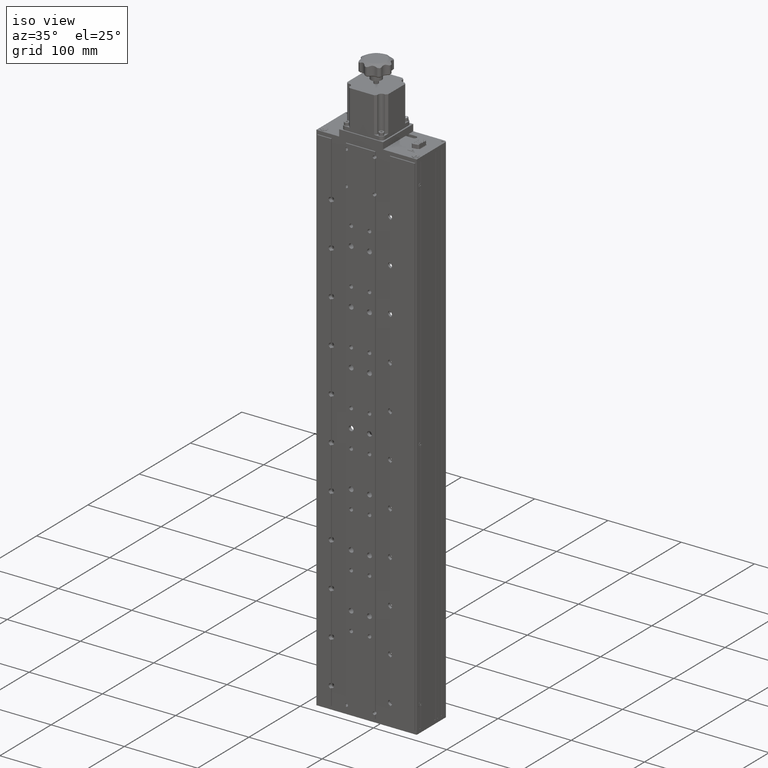
[diagram: clean part render]
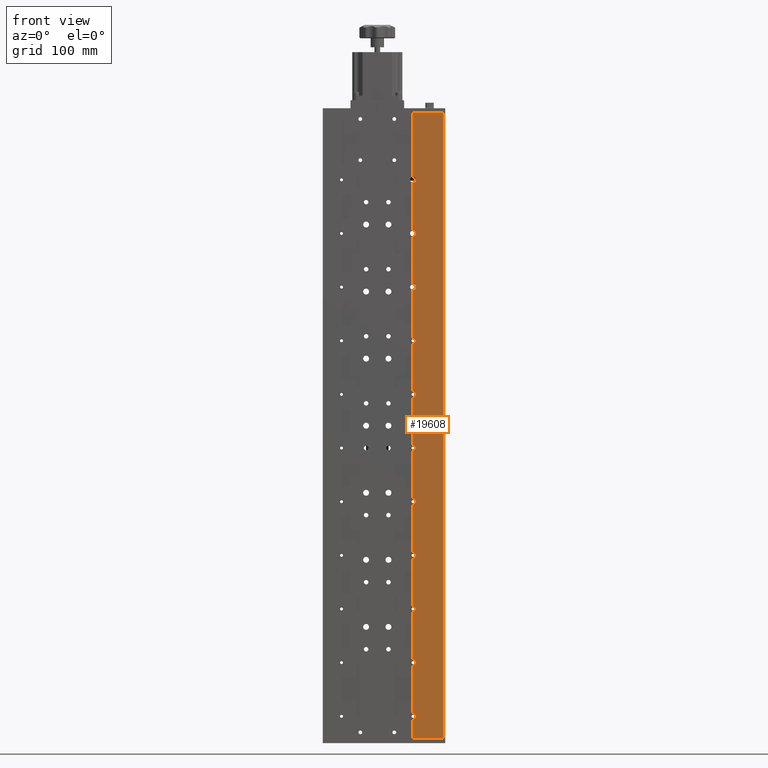
[diagram: tour spotlight — one face highlighted and labeled with its STEP entity id]
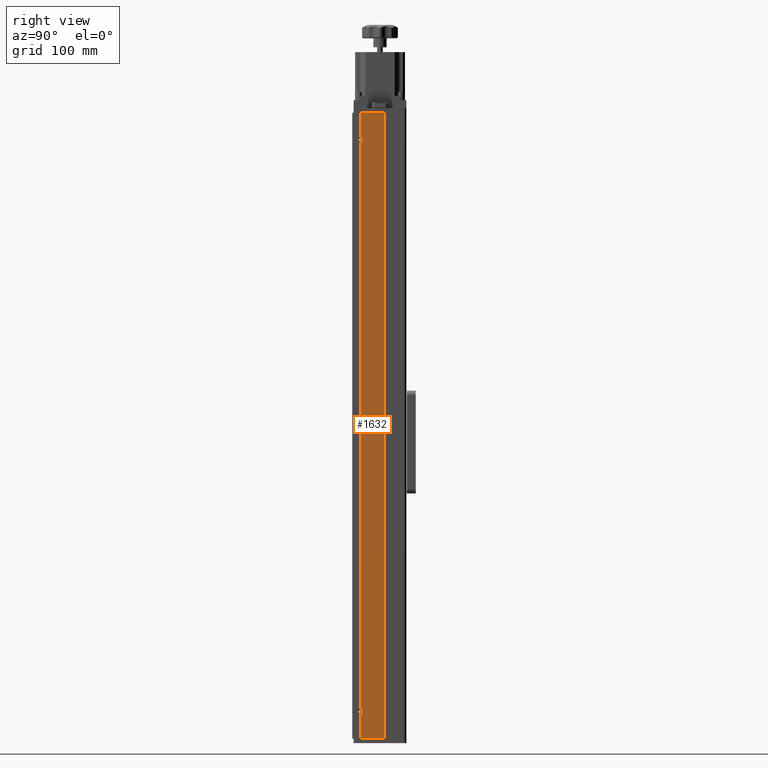
[diagram: tour spotlight — one face highlighted and labeled with its STEP entity id]
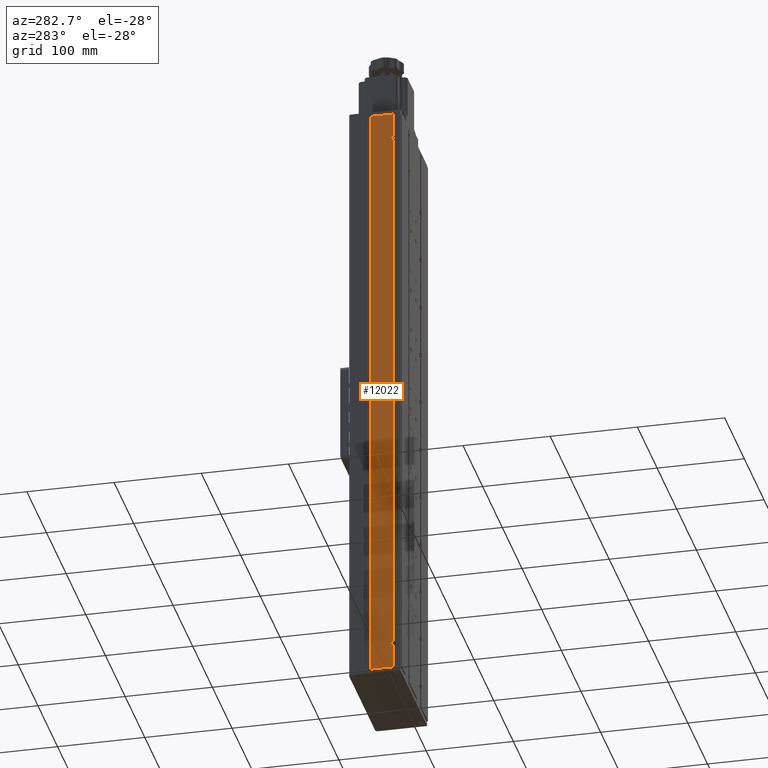
[diagram: tour spotlight — one face highlighted and labeled with its STEP entity id]
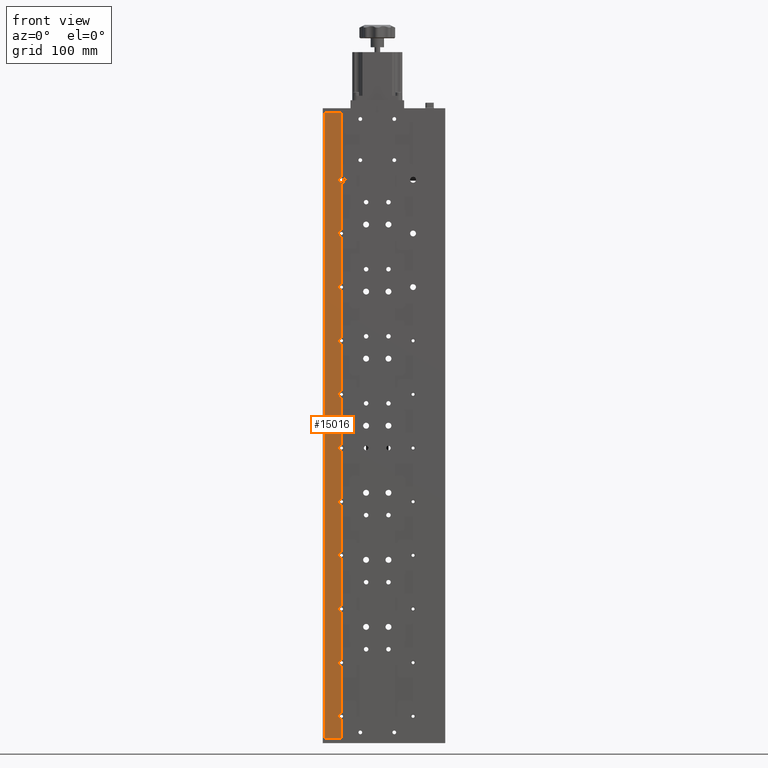
[diagram: tour spotlight — one face highlighted and labeled with its STEP entity id]
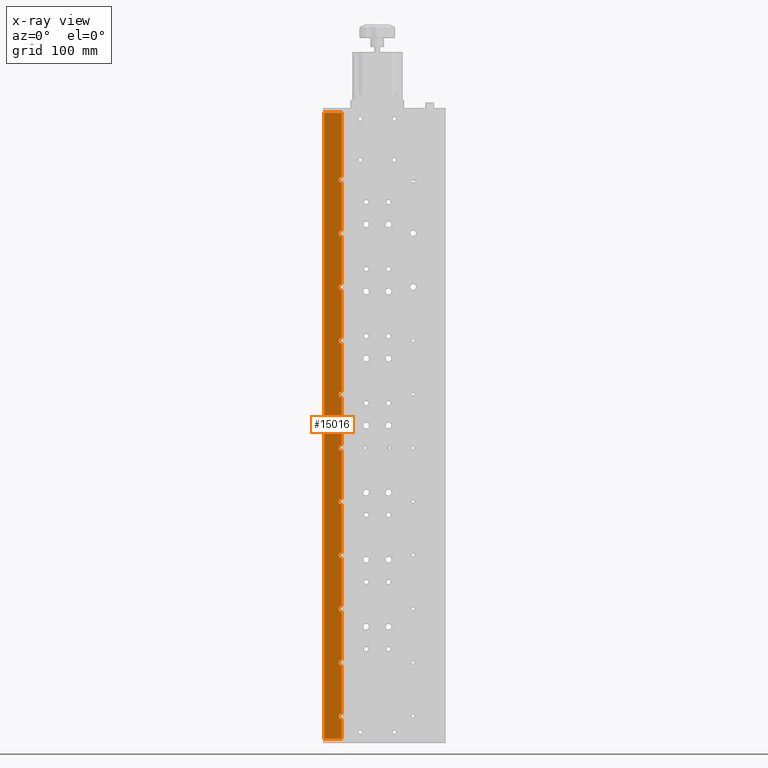
[diagram: x-ray of the same camera — body ghosted, this tour face saturated]
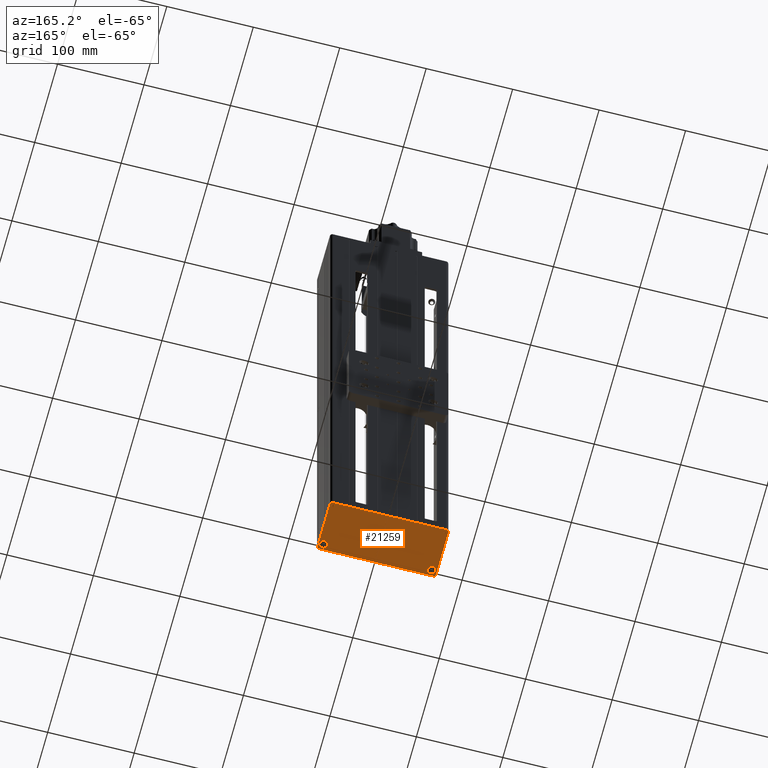
[diagram: tour spotlight — one face highlighted and labeled with its STEP entity id]
A machine part: a face-by-face anatomy tour. The part has 793 B-rep faces; the first image is the clean iso view, then the 5 largest visible faces are spotlighted one at a time (largest first), each with its STEP entity span.

Face 1 — front view, entity #19608. In plain terms, the highlighted planar face has unit normal (-0, 1, 0).
Definition (entity closure, byte-faithful):
#33 = CARTESIAN_POINT ( 'NONE',  ( 29.38919164396005357, -10.41765062064795266, 350.0000000000000000 ) ) ;
#244 = AXIS2_PLACEMENT_3D ( 'NONE', #11046, #29598, #13072 ) ;
#281 = CARTESIAN_POINT ( 'NONE',  ( 29.38919164395997186, -10.41765062064795266, -144.9999999999999147 ) ) ;
#397 = VECTOR ( 'NONE', #19033, 1000.000000000000000 ) ;
#455 = LINE ( 'NONE', #19754, #29008 ) ;
#557 = LINE ( 'NONE', #28826, #7156 ) ;
#569 = ORIENTED_EDGE ( 'NONE', *, *, #6688, .F. ) ;
#643 = DIRECTION ( 'NONE',  ( -1.000000000000000000, -3.029454718961630664E-18, 0.000000000000000000 ) ) ;
#767 = DIRECTION ( 'NONE',  ( 0.000000000000000000, 0.000000000000000000, -1.000000000000000000 ) ) ;
#825 = VERTEX_POINT ( 'NONE', #9692 ) ;
#1041 = VECTOR ( 'NONE', #5436, 1000.000000000000000 ) ;
#1083 = CARTESIAN_POINT ( 'NONE',  ( 29.38919164396005357, -10.41765062064795444, 151.7500000000000853 ) ) ;
#1190 = DIRECTION ( 'NONE',  ( 0.000000000000000000, 0.000000000000000000, 1.000000000000000000 ) ) ;
#1195 = ORIENTED_EDGE ( 'NONE', *, *, #10679, .F. ) ;
#1523 = ORIENTED_EDGE ( 'NONE', *, *, #19331, .F. ) ;
#1536 = CARTESIAN_POINT ( 'NONE',  ( 29.38919164396005357, -10.41765062064795266, 278.2500000000000000 ) ) ;
#1540 = AXIS2_PLACEMENT_3D ( 'NONE', #27590, #4114, #643 ) ;
#1542 = EDGE_CURVE ( 'NONE', #3134, #16167, #18695, .T. ) ;
#1862 = LINE ( 'NONE', #25962, #6188 ) ;
#1922 = VERTEX_POINT ( 'NONE', #18314 ) ;
#1953 = AXIS2_PLACEMENT_3D ( 'NONE', #6918, #4441, #13858 ) ;
#1975 = AXIS2_PLACEMENT_3D ( 'NONE', #2116, #23567, #16184 ) ;
#2109 = AXIS2_PLACEMENT_3D ( 'NONE', #12465, #12312, #21721 ) ;
#2116 = CARTESIAN_POINT ( 'NONE',  ( 29.38919164395997186, -10.41765062064795266, -204.9999999999999147 ) ) ;
#2396 = ORIENTED_EDGE ( 'NONE', *, *, #28928, .F. ) ;
#2414 = EDGE_CURVE ( 'NONE', #30330, #23233, #20906, .T. ) ;
#2662 = CARTESIAN_POINT ( 'NONE',  ( 29.38919164395997186, -10.41765062064795444, 275.0000000000000000 ) ) ;
#3037 = CARTESIAN_POINT ( 'NONE',  ( 29.38919164396005357, -10.41765062064795266, 350.0000000000000000 ) ) ;
#3134 = VERTEX_POINT ( 'NONE', #27753 ) ;
#3642 = CARTESIAN_POINT ( 'NONE',  ( 29.38919164396005357, -10.41765062064795266, 350.0000000000000000 ) ) ;
#3660 = DIRECTION ( 'NONE',  ( 3.689503073101735203E-32, -1.000000000000000000, 0.000000000000000000 ) ) ;
#3741 = CARTESIAN_POINT ( 'NONE',  ( -74.98580835603993933, -10.41765062064795089, -350.0000000000000000 ) ) ;
#3893 = CARTESIAN_POINT ( 'NONE',  ( 29.38919164396005357, -10.41765062064795266, -28.24999999999993605 ) ) ;
#3927 = EDGE_CURVE ( 'NONE', #10886, #1922, #17392, .T. ) ;
#4114 = DIRECTION ( 'NONE',  ( -3.029454718961630664E-18, 1.000000000000000000, 0.000000000000000000 ) ) ;
#4116 = VERTEX_POINT ( 'NONE', #16560 ) ;
#4247 = VERTEX_POINT ( 'NONE', #24699 ) ;
#4441 = DIRECTION ( 'NONE',  ( 3.689503073101735203E-32, -1.000000000000000000, 0.000000000000000000 ) ) ;
#4468 = CARTESIAN_POINT ( 'NONE',  ( 29.38919164396005357, -10.41765062064795266, 350.0000000000000000 ) ) ;
#5059 = LINE ( 'NONE', #3037, #17304 ) ;
#5065 = CARTESIAN_POINT ( 'NONE',  ( 29.38919164396005357, -10.41765062064795266, 271.7500000000000568 ) ) ;
#5213 = ORIENTED_EDGE ( 'NONE', *, *, #17260, .F. ) ;
#5224 = CIRCLE ( 'NONE', #9647, 3.250000000000002665 ) ;
#5262 = DIRECTION ( 'NONE',  ( 3.689503073101735203E-32, -1.000000000000000000, 0.000000000000000000 ) ) ;
#5436 = DIRECTION ( 'NONE',  ( 0.000000000000000000, 0.000000000000000000, 1.000000000000000000 ) ) ;
#5473 = CARTESIAN_POINT ( 'NONE',  ( 29.38919164395997186, -10.41765062064795266, -208.2499999999999147 ) ) ;
#6188 = VECTOR ( 'NONE', #25507, 1000.000000000000000 ) ;
#6242 = VERTEX_POINT ( 'NONE', #7464 ) ;
#6263 = ORIENTED_EDGE ( 'NONE', *, *, #16118, .F. ) ;
#6278 = CARTESIAN_POINT ( 'NONE',  ( 29.38919164396006067, -10.41765062064795266, 350.0000000000000000 ) ) ;
#6345 = CIRCLE ( 'NONE', #17688, 3.249999999999975131 ) ;
#6348 = DIRECTION ( 'NONE',  ( 3.689503073101735203E-32, -1.000000000000000000, 0.000000000000000000 ) ) ;
#6550 = DIRECTION ( 'NONE',  ( 0.000000000000000000, 0.000000000000000000, 1.000000000000000000 ) ) ;
#6603 = LINE ( 'NONE', #25442, #16702 ) ;
#6688 = EDGE_CURVE ( 'NONE', #4116, #8564, #17039, .T. ) ;
#6770 = ORIENTED_EDGE ( 'NONE', *, *, #11481, .F. ) ;
#6844 = EDGE_CURVE ( 'NONE', #7202, #825, #17079, .T. ) ;
#6918 = CARTESIAN_POINT ( 'NONE',  ( 29.38919164395997186, -10.41765062064795266, -84.99999999999994316 ) ) ;
#7156 = VECTOR ( 'NONE', #28666, 1000.000000000000000 ) ;
#7202 = VERTEX_POINT ( 'NONE', #17536 ) ;
#7208 = VECTOR ( 'NONE', #8500, 1000.000000000000000 ) ;
#7438 = LINE ( 'NONE', #26278, #397 ) ;
#7464 = CARTESIAN_POINT ( 'NONE',  ( 29.38919164396005357, -10.41765062064795266, -268.2499999999998863 ) ) ;
#7507 = VERTEX_POINT ( 'NONE', #8233 ) ;
#7547 = DIRECTION ( 'NONE',  ( 3.689503073101735203E-32, -1.000000000000000000, 0.000000000000000000 ) ) ;
#8145 = CARTESIAN_POINT ( 'NONE',  ( 29.38919164396005357, -10.41765062064795266, 350.0000000000000000 ) ) ;
#8159 = AXIS2_PLACEMENT_3D ( 'NONE', #281, #7547, #16964 ) ;
#8203 = CARTESIAN_POINT ( 'NONE',  ( 29.38919164396005357, -10.41765062064795266, 350.0000000000000000 ) ) ;
#8233 = CARTESIAN_POINT ( 'NONE',  ( 63.38919164396004646, -10.41765062064795089, -349.9999999999998863 ) ) ;
#8283 = EDGE_CURVE ( 'NONE', #8620, #20502, #24781, .T. ) ;
#8500 = DIRECTION ( 'NONE',  ( 0.000000000000000000, 0.000000000000000000, 1.000000000000000000 ) ) ;
#8564 = VERTEX_POINT ( 'NONE', #10534 ) ;
#8620 = VERTEX_POINT ( 'NONE', #3893 ) ;
#8657 = LINE ( 'NONE', #8203, #7208 ) ;
#9059 = ORIENTED_EDGE ( 'NONE', *, *, #29341, .F. ) ;
#9647 = AXIS2_PLACEMENT_3D ( 'NONE', #22552, #6348, #13613 ) ;
#9692 = CARTESIAN_POINT ( 'NONE',  ( 29.38919164396005357, -10.41765062064795444, -81.74999999999992895 ) ) ;
#9775 = VERTEX_POINT ( 'NONE', #1536 ) ;
#9796 = VECTOR ( 'NONE', #1190, 1000.000000000000000 ) ;
#9828 = CARTESIAN_POINT ( 'NONE',  ( 29.38919164396005357, -10.41765062064795266, 91.75000000000005684 ) ) ;
#10098 = VECTOR ( 'NONE', #29131, 1000.000000000000000 ) ;
#10217 = DIRECTION ( 'NONE',  ( 0.000000000000000000, 0.000000000000000000, -1.000000000000000000 ) ) ;
#10252 = DIRECTION ( 'NONE',  ( 0.000000000000000000, 0.000000000000000000, 1.000000000000000000 ) ) ;
#10444 = ORIENTED_EDGE ( 'NONE', *, *, #12792, .F. ) ;
#10534 = CARTESIAN_POINT ( 'NONE',  ( 29.38919164396005357, -10.41765062064795266, -141.7499999999999147 ) ) ;
#10679 = EDGE_CURVE ( 'NONE', #23751, #4116, #15191, .T. ) ;
#10886 = VERTEX_POINT ( 'NONE', #27406 ) ;
#10954 = ORIENTED_EDGE ( 'NONE', *, *, #18480, .F. ) ;
#11046 = CARTESIAN_POINT ( 'NONE',  ( 29.38919164395997186, -10.41765062064795266, -324.9999999999999432 ) ) ;
#11277 = VERTEX_POINT ( 'NONE', #27669 ) ;
#11481 = EDGE_CURVE ( 'NONE', #6242, #23673, #25446, .T. ) ;
#11621 = ORIENTED_EDGE ( 'NONE', *, *, #12892, .F. ) ;
#12143 = DIRECTION ( 'NONE',  ( 0.000000000000000000, 0.000000000000000000, 1.000000000000000000 ) ) ;
#12296 = LINE ( 'NONE', #4468, #14712 ) ;
#12312 = DIRECTION ( 'NONE',  ( 3.689503073101735203E-32, -1.000000000000000000, 0.000000000000000000 ) ) ;
#12465 = CARTESIAN_POINT ( 'NONE',  ( 29.38919164395997186, -10.41765062064795266, -24.99999999999993960 ) ) ;
#12475 = DIRECTION ( 'NONE',  ( 0.000000000000000000, 0.000000000000000000, 1.000000000000000000 ) ) ;
#12786 = ORIENTED_EDGE ( 'NONE', *, *, #1542, .F. ) ;
#12792 = EDGE_CURVE ( 'NONE', #825, #8620, #557, .T. ) ;
#12816 = ORIENTED_EDGE ( 'NONE', *, *, #22551, .F. ) ;
#12892 = EDGE_CURVE ( 'NONE', #25912, #22830, #19856, .T. ) ;
#13072 = DIRECTION ( 'NONE',  ( 0.000000000000000000, 0.000000000000000000, -1.000000000000000000 ) ) ;
#13076 = CIRCLE ( 'NONE', #244, 3.249999999999975131 ) ;
#13203 = CARTESIAN_POINT ( 'NONE',  ( 29.38919164396005357, -10.41765062064795266, 350.0000000000000000 ) ) ;
#13326 = EDGE_CURVE ( 'NONE', #1922, #24510, #1862, .T. ) ;
#13410 = CARTESIAN_POINT ( 'NONE',  ( 29.38919164396005357, -10.41765062064795266, -350.0000000000000000 ) ) ;
#13609 = AXIS2_PLACEMENT_3D ( 'NONE', #24806, #3660, #15550 ) ;
#13613 = DIRECTION ( 'NONE',  ( 0.000000000000000000, 0.000000000000000000, -1.000000000000000000 ) ) ;
#13858 = DIRECTION ( 'NONE',  ( 0.000000000000000000, 0.000000000000000000, -1.000000000000000000 ) ) ;
#13952 = LINE ( 'NONE', #33, #14415 ) ;
#14257 = DIRECTION ( 'NONE',  ( -1.000000000000000000, -3.029454718961630664E-18, 0.000000000000000000 ) ) ;
#14333 = CARTESIAN_POINT ( 'NONE',  ( 29.38919164396005357, -10.41765062064795266, -21.74999999999994316 ) ) ;
#14415 = VECTOR ( 'NONE', #6550, 1000.000000000000000 ) ;
#14712 = VECTOR ( 'NONE', #12143, 1000.000000000000000 ) ;
#14946 = ORIENTED_EDGE ( 'NONE', *, *, #29407, .T. ) ;
#15000 = LINE ( 'NONE', #19187, #1041 ) ;
#15009 = DIRECTION ( 'NONE',  ( 3.689503073101735203E-32, -1.000000000000000000, 0.000000000000000000 ) ) ;
#15191 = LINE ( 'NONE', #13203, #27359 ) ;
#15205 = ORIENTED_EDGE ( 'NONE', *, *, #24583, .F. ) ;
#15245 = EDGE_CURVE ( 'NONE', #24510, #11277, #28989, .T. ) ;
#15330 = ORIENTED_EDGE ( 'NONE', *, *, #8283, .F. ) ;
#15429 = EDGE_CURVE ( 'NONE', #9775, #23233, #455, .T. ) ;
#15550 = DIRECTION ( 'NONE',  ( 0.000000000000000000, 0.000000000000000000, -1.000000000000000000 ) ) ;
#15626 = EDGE_CURVE ( 'NONE', #11277, #23752, #12296, .T. ) ;
#16118 = EDGE_CURVE ( 'NONE', #7507, #25912, #26908, .T. ) ;
#16167 = VERTEX_POINT ( 'NONE', #18099 ) ;
#16184 = DIRECTION ( 'NONE',  ( 0.000000000000000000, 0.000000000000000000, -1.000000000000000000 ) ) ;
#16560 = CARTESIAN_POINT ( 'NONE',  ( 29.38919164395997186, -10.41765062064795266, -148.2499999999999147 ) ) ;
#16702 = VECTOR ( 'NONE', #20794, 1000.000000000000000 ) ;
#16964 = DIRECTION ( 'NONE',  ( 0.000000000000000000, 0.000000000000000000, -1.000000000000000000 ) ) ;
#17039 = CIRCLE ( 'NONE', #8159, 3.250000000000002665 ) ;
#17079 = CIRCLE ( 'NONE', #1953, 3.250000000000002665 ) ;
#17260 = EDGE_CURVE ( 'NONE', #25986, #23751, #21704, .T. ) ;
#17304 = VECTOR ( 'NONE', #12475, 1000.000000000000000 ) ;
#17392 = CIRCLE ( 'NONE', #18883, 3.249999999999996003 ) ;
#17536 = CARTESIAN_POINT ( 'NONE',  ( 29.38919164395997186, -10.41765062064795266, -88.24999999999994316 ) ) ;
#17688 = AXIS2_PLACEMENT_3D ( 'NONE', #2662, #23354, #18742 ) ;
#17757 = VERTEX_POINT ( 'NONE', #28033 ) ;
#18099 = CARTESIAN_POINT ( 'NONE',  ( 29.38919164396005357, -10.41765062064795444, 218.2500000000001421 ) ) ;
#18165 = PLANE ( 'NONE',  #1540 ) ;
#18314 = CARTESIAN_POINT ( 'NONE',  ( 29.38919164396005357, -10.41765062064795266, 38.25000000000004974 ) ) ;
#18443 = VECTOR ( 'NONE', #14257, 1000.000000000000000 ) ;
#18480 = EDGE_CURVE ( 'NONE', #16167, #20481, #15000, .T. ) ;
#18695 = CIRCLE ( 'NONE', #23104, 3.250000000000002665 ) ;
#18742 = DIRECTION ( 'NONE',  ( 0.000000000000000000, 0.000000000000000000, -1.000000000000000000 ) ) ;
#18834 = ORIENTED_EDGE ( 'NONE', *, *, #15626, .F. ) ;
#18883 = AXIS2_PLACEMENT_3D ( 'NONE', #25525, #20728, #20574 ) ;
#19033 = DIRECTION ( 'NONE',  ( 0.000000000000000000, 0.000000000000000000, 1.000000000000000000 ) ) ;
#19113 = ORIENTED_EDGE ( 'NONE', *, *, #26528, .F. ) ;
#19187 = CARTESIAN_POINT ( 'NONE',  ( 29.38919164396005357, -10.41765062064795266, 350.0000000000000000 ) ) ;
#19331 = EDGE_CURVE ( 'NONE', #8564, #7202, #5059, .T. ) ;
#19495 = CARTESIAN_POINT ( 'NONE',  ( 29.38919164395997186, -10.41765062064795444, 95.00000000000005684 ) ) ;
#19607 = ORIENTED_EDGE ( 'NONE', *, *, #15429, .F. ) ;
#19608 = ADVANCED_FACE ( 'NONE', ( #25271 ), #18165, .F. ) ;
#19754 = CARTESIAN_POINT ( 'NONE',  ( 29.38919164396005357, -10.41765062064795266, 350.0000000000000000 ) ) ;
#19766 = CARTESIAN_POINT ( 'NONE',  ( 29.38919164396005357, -10.41765062064795266, -261.7499999999999432 ) ) ;
#19856 = LINE ( 'NONE', #3642, #10098 ) ;
#20330 = ORIENTED_EDGE ( 'NONE', *, *, #13326, .F. ) ;
#20481 = VERTEX_POINT ( 'NONE', #5065 ) ;
#20502 = VERTEX_POINT ( 'NONE', #14333 ) ;
#20574 = DIRECTION ( 'NONE',  ( 0.000000000000000000, 0.000000000000000000, -1.000000000000000000 ) ) ;
#20728 = DIRECTION ( 'NONE',  ( 3.689503073101735203E-32, -1.000000000000000000, 0.000000000000000000 ) ) ;
#20794 = DIRECTION ( 'NONE',  ( 0.000000000000000000, 0.000000000000000000, 1.000000000000000000 ) ) ;
#20906 = LINE ( 'NONE', #30340, #18443 ) ;
#21704 = CIRCLE ( 'NONE', #1975, 3.250000000000002665 ) ;
#21721 = DIRECTION ( 'NONE',  ( 0.000000000000000000, 0.000000000000000000, -1.000000000000000000 ) ) ;
#21925 = CARTESIAN_POINT ( 'NONE',  ( 29.38919164395997186, -10.41765062064795266, 215.0000000000001421 ) ) ;
#22126 = VECTOR ( 'NONE', #29539, 1000.000000000000000 ) ;
#22254 = ORIENTED_EDGE ( 'NONE', *, *, #29634, .F. ) ;
#22551 = EDGE_CURVE ( 'NONE', #4247, #6242, #13952, .T. ) ;
#22552 = CARTESIAN_POINT ( 'NONE',  ( 29.38919164395997186, -10.41765062064795266, 155.0000000000000853 ) ) ;
#22672 = CARTESIAN_POINT ( 'NONE',  ( 63.38919164396006067, -10.41765062064795089, 350.0000000000001137 ) ) ;
#22830 = VERTEX_POINT ( 'NONE', #27514 ) ;
#23104 = AXIS2_PLACEMENT_3D ( 'NONE', #21925, #5262, #767 ) ;
#23233 = VERTEX_POINT ( 'NONE', #6278 ) ;
#23354 = DIRECTION ( 'NONE',  ( 3.689503073101735203E-32, -1.000000000000000000, 0.000000000000000000 ) ) ;
#23567 = DIRECTION ( 'NONE',  ( 3.689503073101735203E-32, -1.000000000000000000, 0.000000000000000000 ) ) ;
#23673 = VERTEX_POINT ( 'NONE', #19766 ) ;
#23751 = VERTEX_POINT ( 'NONE', #26433 ) ;
#23752 = VERTEX_POINT ( 'NONE', #1083 ) ;
#24226 = DIRECTION ( 'NONE',  ( 0.000000000000000000, 0.000000000000000000, 1.000000000000000000 ) ) ;
#24305 = ORIENTED_EDGE ( 'NONE', *, *, #2414, .T. ) ;
#24510 = VERTEX_POINT ( 'NONE', #9828 ) ;
#24583 = EDGE_CURVE ( 'NONE', #22830, #4247, #13076, .T. ) ;
#24699 = CARTESIAN_POINT ( 'NONE',  ( 29.38919164396005357, -10.41765062064795266, -321.7500000000000000 ) ) ;
#24781 = CIRCLE ( 'NONE', #2109, 3.249999999999996003 ) ;
#24806 = CARTESIAN_POINT ( 'NONE',  ( 29.38919164395997186, -10.41765062064795089, -264.9999999999998863 ) ) ;
#25048 = EDGE_CURVE ( 'NONE', #23752, #17757, #5224, .T. ) ;
#25271 = FACE_OUTER_BOUND ( 'NONE', #29961, .T. ) ;
#25442 = CARTESIAN_POINT ( 'NONE',  ( 63.38919164396003225, -10.41765062064795089, -349.9999999999998863 ) ) ;
#25446 = CIRCLE ( 'NONE', #13609, 3.249999999999975131 ) ;
#25507 = DIRECTION ( 'NONE',  ( 0.000000000000000000, 0.000000000000000000, 1.000000000000000000 ) ) ;
#25525 = CARTESIAN_POINT ( 'NONE',  ( 29.38919164395997186, -10.41765062064795444, 35.00000000000004974 ) ) ;
#25545 = AXIS2_PLACEMENT_3D ( 'NONE', #19495, #15009, #10217 ) ;
#25912 = VERTEX_POINT ( 'NONE', #13410 ) ;
#25962 = CARTESIAN_POINT ( 'NONE',  ( 29.38919164396005357, -10.41765062064795266, 350.0000000000000000 ) ) ;
#25986 = VERTEX_POINT ( 'NONE', #5473 ) ;
#26278 = CARTESIAN_POINT ( 'NONE',  ( 29.38919164396005357, -10.41765062064795266, 350.0000000000000000 ) ) ;
#26433 = CARTESIAN_POINT ( 'NONE',  ( 29.38919164396005357, -10.41765062064795266, -201.7499999999999147 ) ) ;
#26528 = EDGE_CURVE ( 'NONE', #20502, #10886, #8657, .T. ) ;
#26636 = ORIENTED_EDGE ( 'NONE', *, *, #25048, .F. ) ;
#26908 = LINE ( 'NONE', #3741, #22126 ) ;
#27359 = VECTOR ( 'NONE', #10252, 1000.000000000000000 ) ;
#27406 = CARTESIAN_POINT ( 'NONE',  ( 29.38919164396005357, -10.41765062064795266, 31.75000000000005684 ) ) ;
#27493 = ORIENTED_EDGE ( 'NONE', *, *, #6844, .F. ) ;
#27514 = CARTESIAN_POINT ( 'NONE',  ( 29.38919164395997186, -10.41765062064795266, -328.2499999999999432 ) ) ;
#27590 = CARTESIAN_POINT ( 'NONE',  ( -74.98580835603993933, -10.41765062064795089, -350.0000000000000000 ) ) ;
#27669 = CARTESIAN_POINT ( 'NONE',  ( 29.38919164396005357, -10.41765062064795266, 98.25000000000005684 ) ) ;
#27753 = CARTESIAN_POINT ( 'NONE',  ( 29.38919164396005357, -10.41765062064795444, 211.7500000000001421 ) ) ;
#28033 = CARTESIAN_POINT ( 'NONE',  ( 29.38919164396005357, -10.41765062064795266, 158.2500000000000853 ) ) ;
#28346 = ORIENTED_EDGE ( 'NONE', *, *, #3927, .F. ) ;
#28666 = DIRECTION ( 'NONE',  ( 0.000000000000000000, 0.000000000000000000, 1.000000000000000000 ) ) ;
#28826 = CARTESIAN_POINT ( 'NONE',  ( 29.38919164396005357, -10.41765062064795266, 350.0000000000000000 ) ) ;
#28928 = EDGE_CURVE ( 'NONE', #23673, #25986, #7438, .T. ) ;
#28989 = CIRCLE ( 'NONE', #25545, 3.250000000000002665 ) ;
#29008 = VECTOR ( 'NONE', #24226, 1000.000000000000000 ) ;
#29131 = DIRECTION ( 'NONE',  ( 0.000000000000000000, 0.000000000000000000, 1.000000000000000000 ) ) ;
#29304 = LINE ( 'NONE', #8145, #9796 ) ;
#29341 = EDGE_CURVE ( 'NONE', #17757, #3134, #29304, .T. ) ;
#29407 = EDGE_CURVE ( 'NONE', #7507, #30330, #6603, .T. ) ;
#29539 = DIRECTION ( 'NONE',  ( -1.000000000000000000, -3.029454718961630664E-18, 0.000000000000000000 ) ) ;
#29598 = DIRECTION ( 'NONE',  ( 3.689503073101735203E-32, -1.000000000000000000, 0.000000000000000000 ) ) ;
#29634 = EDGE_CURVE ( 'NONE', #20481, #9775, #6345, .T. ) ;
#29961 = EDGE_LOOP ( 'NONE', ( #22254, #10954, #12786, #9059, #26636, #18834, #30177, #20330, #28346, #19113, #15330, #10444, #27493, #1523, #569, #1195, #5213, #2396, #6770, #12816, #15205, #11621, #6263, #14946, #24305, #19607 ) ) ;
#30177 = ORIENTED_EDGE ( 'NONE', *, *, #15245, .F. ) ;
#30330 = VERTEX_POINT ( 'NONE', #22672 ) ;
#30340 = CARTESIAN_POINT ( 'NONE',  ( -74.98580835603993933, -10.41765062064795266, 350.0000000000000000 ) ) ;

Face 2 — right view, entity #1632. In plain terms, the highlighted planar face has unit normal (-1, 0, 0).
Definition (entity closure, byte-faithful):
#630 = LINE ( 'NONE', #21500, #27418 ) ;
#1632 = ADVANCED_FACE ( 'NONE', ( #27940 ), #16198, .F. ) ;
#1634 = DIRECTION ( 'NONE',  ( 1.000000000000000000, -0.000000000000000000, -0.000000000000000000 ) ) ;
#1927 = AXIS2_PLACEMENT_3D ( 'NONE', #22555, #3875, #10821 ) ;
#2988 = ORIENTED_EDGE ( 'NONE', *, *, #29829, .F. ) ;
#3533 = ORIENTED_EDGE ( 'NONE', *, *, #5881, .T. ) ;
#3864 = ORIENTED_EDGE ( 'NONE', *, *, #11183, .T. ) ;
#3875 = DIRECTION ( 'NONE',  ( 1.000000000000000000, -0.000000000000000000, -0.000000000000000000 ) ) ;
#4265 = ORIENTED_EDGE ( 'NONE', *, *, #20298, .F. ) ;
#4854 = VERTEX_POINT ( 'NONE', #23829 ) ;
#5881 = EDGE_CURVE ( 'NONE', #10362, #26242, #28807, .T. ) ;
#6183 = VERTEX_POINT ( 'NONE', #11798 ) ;
#6671 = LINE ( 'NONE', #25665, #27211 ) ;
#6804 = EDGE_CURVE ( 'NONE', #19486, #20308, #13562, .T. ) ;
#7020 = CIRCLE ( 'NONE', #9464, 3.149999999999999023 ) ;
#7084 = DIRECTION ( 'NONE',  ( 1.000000000000000000, -0.000000000000000000, -0.000000000000000000 ) ) ;
#8277 = DIRECTION ( 'NONE',  ( 0.000000000000000000, 0.000000000000000000, -1.000000000000000000 ) ) ;
#9245 = DIRECTION ( 'NONE',  ( 0.000000000000000000, 0.000000000000000000, 1.000000000000000000 ) ) ;
#9254 = CARTESIAN_POINT ( 'NONE',  ( 65.38919164396007488, -1.167650620647900261, -317.1086335410397510 ) ) ;
#9464 = AXIS2_PLACEMENT_3D ( 'NONE', #18969, #7084, #16208 ) ;
#10068 = DIRECTION ( 'NONE',  ( 0.000000000000000000, 1.000000000000000000, 0.000000000000000000 ) ) ;
#10216 = LINE ( 'NONE', #15467, #16539 ) ;
#10362 = VERTEX_POINT ( 'NONE', #24799 ) ;
#10813 = VECTOR ( 'NONE', #19390, 1000.000000000000000 ) ;
#10821 = DIRECTION ( 'NONE',  ( 0.000000000000000000, 0.000000000000000000, -1.000000000000000000 ) ) ;
#10946 = AXIS2_PLACEMENT_3D ( 'NONE', #22777, #1634, #8277 ) ;
#11070 = EDGE_CURVE ( 'NONE', #13538, #6183, #10216, .T. ) ;
#11183 = EDGE_CURVE ( 'NONE', #23133, #10362, #29841, .T. ) ;
#11542 = DIRECTION ( 'NONE',  ( -0.000000000000000000, -0.000000000000000000, -1.000000000000000000 ) ) ;
#11798 = CARTESIAN_POINT ( 'NONE',  ( 65.38919164396007488, 25.08234937935216635, 350.0000000000000000 ) ) ;
#11977 = EDGE_CURVE ( 'NONE', #16694, #4854, #630, .T. ) ;
#12008 = CARTESIAN_POINT ( 'NONE',  ( 65.38919164396007488, -1.167650620647900261, 350.0000000000000000 ) ) ;
#12228 = DIRECTION ( 'NONE',  ( -0.000000000000000000, -0.000000000000000000, -1.000000000000000000 ) ) ;
#12646 = EDGE_LOOP ( 'NONE', ( #14592, #2988, #3864, #3533, #24300, #28550, #29625, #29551, #28570, #4265 ) ) ;
#13043 = CARTESIAN_POINT ( 'NONE',  ( 65.38919164396007488, -1.167650620647900261, 350.0000000000000000 ) ) ;
#13538 = VERTEX_POINT ( 'NONE', #17591 ) ;
#13562 = LINE ( 'NONE', #21114, #25103 ) ;
#14592 = ORIENTED_EDGE ( 'NONE', *, *, #6804, .T. ) ;
#15467 = CARTESIAN_POINT ( 'NONE',  ( 65.38919164396007488, -1.167650620647900261, 350.0000000000000000 ) ) ;
#16198 = PLANE ( 'NONE',  #25074 ) ;
#16208 = DIRECTION ( 'NONE',  ( 0.000000000000000000, 0.000000000000000000, -1.000000000000000000 ) ) ;
#16271 = CARTESIAN_POINT ( 'NONE',  ( 65.38919164396007488, 25.08234937935216635, -350.0000000000000000 ) ) ;
#16539 = VECTOR ( 'NONE', #10068, 1000.000000000000000 ) ;
#16642 = DIRECTION ( 'NONE',  ( -1.000000000000000000, 0.000000000000000000, 0.000000000000000000 ) ) ;
#16694 = VERTEX_POINT ( 'NONE', #27120 ) ;
#17591 = CARTESIAN_POINT ( 'NONE',  ( 65.38919164396007488, -1.167650620647900261, 350.0000000000000000 ) ) ;
#18083 = EDGE_CURVE ( 'NONE', #13538, #25652, #24753, .T. ) ;
#18845 = CARTESIAN_POINT ( 'NONE',  ( 65.38919164396007488, -1.167650620647900261, 322.8913664589600785 ) ) ;
#18969 = CARTESIAN_POINT ( 'NONE',  ( 65.38919164396007488, -2.417650620647900706, -1.387778780781445676E-14 ) ) ;
#19390 = DIRECTION ( 'NONE',  ( 0.000000000000000000, 1.000000000000000000, 0.000000000000000000 ) ) ;
#19486 = VERTEX_POINT ( 'NONE', #27444 ) ;
#19771 = DIRECTION ( 'NONE',  ( -0.000000000000000000, -0.000000000000000000, -1.000000000000000000 ) ) ;
#19906 = EDGE_CURVE ( 'NONE', #6183, #26242, #6671, .T. ) ;
#20298 = EDGE_CURVE ( 'NONE', #19486, #4854, #7020, .T. ) ;
#20308 = VERTEX_POINT ( 'NONE', #9254 ) ;
#21114 = CARTESIAN_POINT ( 'NONE',  ( 65.38919164396007488, -1.167650620647900261, 350.0000000000000000 ) ) ;
#21500 = CARTESIAN_POINT ( 'NONE',  ( 65.38919164396007488, -1.167650620647900261, 350.0000000000000000 ) ) ;
#21996 = EDGE_CURVE ( 'NONE', #16694, #25652, #28688, .T. ) ;
#22555 = CARTESIAN_POINT ( 'NONE',  ( 65.38919164396007488, -2.417650620647900706, -319.9999999999999432 ) ) ;
#22777 = CARTESIAN_POINT ( 'NONE',  ( 65.38919164396007488, -2.417650620647978865, 319.9999999999999432 ) ) ;
#22861 = CARTESIAN_POINT ( 'NONE',  ( 65.38919164396007488, -1.167650620647900261, 350.0000000000000000 ) ) ;
#23132 = CIRCLE ( 'NONE', #1927, 3.149999999999986144 ) ;
#23133 = VERTEX_POINT ( 'NONE', #30066 ) ;
#23829 = CARTESIAN_POINT ( 'NONE',  ( 65.38919164396007488, -1.167650620647900261, 2.891366458960191288 ) ) ;
#24010 = CARTESIAN_POINT ( 'NONE',  ( 65.38919164396007488, -1.167650620647900261, -350.0000000000000000 ) ) ;
#24300 = ORIENTED_EDGE ( 'NONE', *, *, #19906, .F. ) ;
#24753 = LINE ( 'NONE', #13043, #29130 ) ;
#24799 = CARTESIAN_POINT ( 'NONE',  ( 65.38919164396007488, -1.167650620647900261, -350.0000000000000000 ) ) ;
#25074 = AXIS2_PLACEMENT_3D ( 'NONE', #12008, #16642, #9245 ) ;
#25103 = VECTOR ( 'NONE', #11542, 1000.000000000000000 ) ;
#25355 = DIRECTION ( 'NONE',  ( -0.000000000000000000, -0.000000000000000000, -1.000000000000000000 ) ) ;
#25652 = VERTEX_POINT ( 'NONE', #18845 ) ;
#25665 = CARTESIAN_POINT ( 'NONE',  ( 65.38919164396007488, 25.08234937935216635, 350.0000000000000000 ) ) ;
#26242 = VERTEX_POINT ( 'NONE', #16271 ) ;
#27120 = CARTESIAN_POINT ( 'NONE',  ( 65.38919164396007488, -1.167650620647900261, 317.1086335410398078 ) ) ;
#27211 = VECTOR ( 'NONE', #28431, 1000.000000000000000 ) ;
#27418 = VECTOR ( 'NONE', #19771, 1000.000000000000000 ) ;
#27444 = CARTESIAN_POINT ( 'NONE',  ( 65.38919164396007488, -1.167650620647900261, -2.891366458960205055 ) ) ;
#27940 = FACE_OUTER_BOUND ( 'NONE', #12646, .T. ) ;
#28364 = VECTOR ( 'NONE', #25355, 1000.000000000000000 ) ;
#28431 = DIRECTION ( 'NONE',  ( -0.000000000000000000, -0.000000000000000000, -1.000000000000000000 ) ) ;
#28550 = ORIENTED_EDGE ( 'NONE', *, *, #11070, .F. ) ;
#28570 = ORIENTED_EDGE ( 'NONE', *, *, #11977, .T. ) ;
#28688 = CIRCLE ( 'NONE', #10946, 3.149999999999986144 ) ;
#28807 = LINE ( 'NONE', #24010, #10813 ) ;
#29130 = VECTOR ( 'NONE', #12228, 1000.000000000000000 ) ;
#29551 = ORIENTED_EDGE ( 'NONE', *, *, #21996, .F. ) ;
#29625 = ORIENTED_EDGE ( 'NONE', *, *, #18083, .T. ) ;
#29829 = EDGE_CURVE ( 'NONE', #23133, #20308, #23132, .T. ) ;
#29841 = LINE ( 'NONE', #22861, #28364 ) ;
#30066 = CARTESIAN_POINT ( 'NONE',  ( 65.38919164396007488, -1.167650620647900261, -322.8913664589601353 ) ) ;

Face 3 — auxiliary view, entity #12022. In plain terms, the highlighted planar face has unit normal (-1, 0, 0).
Definition (entity closure, byte-faithful):
#70 = EDGE_CURVE ( 'NONE', #26017, #3635, #19497, .T. ) ;
#468 = ORIENTED_EDGE ( 'NONE', *, *, #19875, .F. ) ;
#804 = CARTESIAN_POINT ( 'NONE',  ( -71.61080835603992512, -1.167650620647900261, 350.0000000000000000 ) ) ;
#892 = ORIENTED_EDGE ( 'NONE', *, *, #16174, .F. ) ;
#1088 = EDGE_CURVE ( 'NONE', #11171, #13149, #5300, .T. ) ;
#1550 = EDGE_CURVE ( 'NONE', #3635, #2259, #23591, .T. ) ;
#1565 = CARTESIAN_POINT ( 'NONE',  ( -71.61080835603998196, -2.417650620647900706, -319.9999999999999432 ) ) ;
#1706 = FACE_OUTER_BOUND ( 'NONE', #6441, .T. ) ;
#2259 = VERTEX_POINT ( 'NONE', #15190 ) ;
#2734 = LINE ( 'NONE', #24490, #26887 ) ;
#3635 = VERTEX_POINT ( 'NONE', #23067 ) ;
#3788 = CARTESIAN_POINT ( 'NONE',  ( -71.61080835603998196, -1.167650620647900261, 2.891366458960177521 ) ) ;
#4131 = CARTESIAN_POINT ( 'NONE',  ( -71.61080835603998196, -1.167650620647900261, -317.1086335410397510 ) ) ;
#4207 = EDGE_CURVE ( 'NONE', #26017, #24599, #18873, .T. ) ;
#4234 = VECTOR ( 'NONE', #5033, 1000.000000000000000 ) ;
#4356 = DIRECTION ( 'NONE',  ( 0.000000000000000000, 0.000000000000000000, 1.000000000000000000 ) ) ;
#4880 = LINE ( 'NONE', #18935, #4234 ) ;
#4965 = DIRECTION ( 'NONE',  ( 0.000000000000000000, 1.000000000000000000, 0.000000000000000000 ) ) ;
#5010 = EDGE_CURVE ( 'NONE', #13149, #15403, #17801, .T. ) ;
#5033 = DIRECTION ( 'NONE',  ( -0.000000000000000000, -0.000000000000000000, -1.000000000000000000 ) ) ;
#5257 = EDGE_CURVE ( 'NONE', #2259, #7104, #28298, .T. ) ;
#5300 = LINE ( 'NONE', #804, #19686 ) ;
#5411 = ORIENTED_EDGE ( 'NONE', *, *, #5010, .F. ) ;
#5607 = CARTESIAN_POINT ( 'NONE',  ( -71.61080835603992512, -1.167650620647900261, -350.0000000000000000 ) ) ;
#5772 = CARTESIAN_POINT ( 'NONE',  ( -71.61080835603992512, -1.167650620647900261, 350.0000000000000000 ) ) ;
#6441 = EDGE_LOOP ( 'NONE', ( #892, #29694, #468, #24053, #24670, #7228, #26070, #20463, #5411, #20526 ) ) ;
#6542 = VERTEX_POINT ( 'NONE', #7274 ) ;
#7104 = VERTEX_POINT ( 'NONE', #3788 ) ;
#7228 = ORIENTED_EDGE ( 'NONE', *, *, #70, .F. ) ;
#7274 = CARTESIAN_POINT ( 'NONE',  ( -71.61080835603998196, -1.167650620647900261, -2.891366458960205055 ) ) ;
#8316 = AXIS2_PLACEMENT_3D ( 'NONE', #14681, #24084, #12219 ) ;
#8346 = DIRECTION ( 'NONE',  ( 0.000000000000000000, 0.000000000000000000, 1.000000000000000000 ) ) ;
#8668 = DIRECTION ( 'NONE',  ( 0.000000000000000000, 0.000000000000000000, 1.000000000000000000 ) ) ;
#8956 = CIRCLE ( 'NONE', #26221, 3.149999999999999023 ) ;
#9141 = VERTEX_POINT ( 'NONE', #4131 ) ;
#10135 = VECTOR ( 'NONE', #13025, 1000.000000000000000 ) ;
#11171 = VERTEX_POINT ( 'NONE', #15307 ) ;
#11672 = EDGE_CURVE ( 'NONE', #24599, #15403, #4880, .T. ) ;
#12022 = ADVANCED_FACE ( 'NONE', ( #1706 ), #15451, .T. ) ;
#12159 = DIRECTION ( 'NONE',  ( -0.000000000000000000, -0.000000000000000000, -1.000000000000000000 ) ) ;
#12219 = DIRECTION ( 'NONE',  ( 0.000000000000000000, 0.000000000000000000, 1.000000000000000000 ) ) ;
#12818 = VECTOR ( 'NONE', #16705, 1000.000000000000000 ) ;
#12978 = CARTESIAN_POINT ( 'NONE',  ( -71.61080835603992512, 25.08234937935210951, -350.0000000000000000 ) ) ;
#13025 = DIRECTION ( 'NONE',  ( 0.000000000000000000, 1.000000000000000000, 0.000000000000000000 ) ) ;
#13149 = VERTEX_POINT ( 'NONE', #21240 ) ;
#14270 = AXIS2_PLACEMENT_3D ( 'NONE', #1565, #30308, #4356 ) ;
#14681 = CARTESIAN_POINT ( 'NONE',  ( -71.61080835603998196, -2.417650620647978865, 319.9999999999999432 ) ) ;
#14861 = DIRECTION ( 'NONE',  ( -0.000000000000000000, -0.000000000000000000, -1.000000000000000000 ) ) ;
#15190 = CARTESIAN_POINT ( 'NONE',  ( -71.61080835603998196, -1.167650620647900261, 317.1086335410398078 ) ) ;
#15307 = CARTESIAN_POINT ( 'NONE',  ( -71.61080835603998196, -1.167650620647900261, -322.8913664589601353 ) ) ;
#15403 = VERTEX_POINT ( 'NONE', #12978 ) ;
#15451 = PLANE ( 'NONE',  #26906 ) ;
#16174 = EDGE_CURVE ( 'NONE', #9141, #11171, #28546, .T. ) ;
#16705 = DIRECTION ( 'NONE',  ( -0.000000000000000000, -0.000000000000000000, -1.000000000000000000 ) ) ;
#17179 = CARTESIAN_POINT ( 'NONE',  ( -71.61080835603992512, -1.167650620647900261, 350.0000000000000000 ) ) ;
#17801 = LINE ( 'NONE', #5607, #10135 ) ;
#18873 = LINE ( 'NONE', #28293, #22911 ) ;
#18935 = CARTESIAN_POINT ( 'NONE',  ( -71.61080835603992512, 25.08234937935210951, 350.0000000000000000 ) ) ;
#19029 = CARTESIAN_POINT ( 'NONE',  ( -71.61080835603992512, -1.167650620647900261, 350.0000000000000000 ) ) ;
#19497 = LINE ( 'NONE', #17179, #25123 ) ;
#19686 = VECTOR ( 'NONE', #24434, 1000.000000000000000 ) ;
#19875 = EDGE_CURVE ( 'NONE', #7104, #6542, #8956, .T. ) ;
#20406 = CARTESIAN_POINT ( 'NONE',  ( -71.61080835603998196, -2.417650620647900706, -1.387778780781445676E-14 ) ) ;
#20463 = ORIENTED_EDGE ( 'NONE', *, *, #11672, .T. ) ;
#20467 = CARTESIAN_POINT ( 'NONE',  ( -71.61080835603992512, 25.08234937935210951, 350.0000000000000000 ) ) ;
#20526 = ORIENTED_EDGE ( 'NONE', *, *, #1088, .F. ) ;
#21240 = CARTESIAN_POINT ( 'NONE',  ( -71.61080835603992512, -1.167650620647900261, -350.0000000000000000 ) ) ;
#22699 = DIRECTION ( 'NONE',  ( -1.000000000000000000, 0.000000000000000000, 0.000000000000000000 ) ) ;
#22911 = VECTOR ( 'NONE', #4965, 1000.000000000000000 ) ;
#23067 = CARTESIAN_POINT ( 'NONE',  ( -71.61080835603998196, -1.167650620647900261, 322.8913664589600785 ) ) ;
#23591 = CIRCLE ( 'NONE', #8316, 3.149999999999986144 ) ;
#24053 = ORIENTED_EDGE ( 'NONE', *, *, #5257, .F. ) ;
#24084 = DIRECTION ( 'NONE',  ( -1.000000000000000000, -0.000000000000000000, -0.000000000000000000 ) ) ;
#24434 = DIRECTION ( 'NONE',  ( -0.000000000000000000, -0.000000000000000000, -1.000000000000000000 ) ) ;
#24467 = EDGE_CURVE ( 'NONE', #6542, #9141, #2734, .T. ) ;
#24490 = CARTESIAN_POINT ( 'NONE',  ( -71.61080835603992512, -1.167650620647900261, 350.0000000000000000 ) ) ;
#24599 = VERTEX_POINT ( 'NONE', #20467 ) ;
#24670 = ORIENTED_EDGE ( 'NONE', *, *, #1550, .F. ) ;
#25123 = VECTOR ( 'NONE', #14861, 1000.000000000000000 ) ;
#26017 = VERTEX_POINT ( 'NONE', #5772 ) ;
#26070 = ORIENTED_EDGE ( 'NONE', *, *, #4207, .T. ) ;
#26221 = AXIS2_PLACEMENT_3D ( 'NONE', #20406, #29840, #8668 ) ;
#26887 = VECTOR ( 'NONE', #12159, 1000.000000000000000 ) ;
#26906 = AXIS2_PLACEMENT_3D ( 'NONE', #29516, #22699, #8346 ) ;
#28293 = CARTESIAN_POINT ( 'NONE',  ( -71.61080835603992512, -1.167650620647900261, 350.0000000000000000 ) ) ;
#28298 = LINE ( 'NONE', #19029, #12818 ) ;
#28546 = CIRCLE ( 'NONE', #14270, 3.149999999999986144 ) ;
#29516 = CARTESIAN_POINT ( 'NONE',  ( -71.61080835603992512, -1.167650620647900261, 350.0000000000000000 ) ) ;
#29694 = ORIENTED_EDGE ( 'NONE', *, *, #24467, .F. ) ;
#29840 = DIRECTION ( 'NONE',  ( -1.000000000000000000, -0.000000000000000000, -0.000000000000000000 ) ) ;
#30308 = DIRECTION ( 'NONE',  ( -1.000000000000000000, -0.000000000000000000, -0.000000000000000000 ) ) ;

Face 4 — front view, entity #15016. An x-ray twin of the same camera follows (body ghosted, this face saturated) — the face is partly hidden behind the body. In plain terms, the highlighted planar face has unit normal (-0, 1, 0).
Definition (entity closure, byte-faithful):
#45 = VERTEX_POINT ( 'NONE', #12253 ) ;
#58 = VERTEX_POINT ( 'NONE', #651 ) ;
#396 = CARTESIAN_POINT ( 'NONE',  ( -74.98580835603993933, -10.41765062064795089, -350.0000000000000000 ) ) ;
#651 = CARTESIAN_POINT ( 'NONE',  ( -50.61080835603994643, -10.41765062064795266, -201.7499999999999147 ) ) ;
#732 = VERTEX_POINT ( 'NONE', #18827 ) ;
#985 = ORIENTED_EDGE ( 'NONE', *, *, #7347, .F. ) ;
#1058 = DIRECTION ( 'NONE',  ( 0.000000000000000000, 0.000000000000000000, -1.000000000000000000 ) ) ;
#1143 = DIRECTION ( 'NONE',  ( -3.029454718961630664E-18, 1.000000000000000000, 0.000000000000000000 ) ) ;
#1181 = CARTESIAN_POINT ( 'NONE',  ( -50.61080835603986117, -10.41765062064795266, -84.99999999999994316 ) ) ;
#1687 = AXIS2_PLACEMENT_3D ( 'NONE', #7799, #7199, #17062 ) ;
#1774 = DIRECTION ( 'NONE',  ( 3.689503073101735203E-32, -1.000000000000000000, 0.000000000000000000 ) ) ;
#1871 = DIRECTION ( 'NONE',  ( 0.000000000000000000, 0.000000000000000000, -1.000000000000000000 ) ) ;
#2021 = CARTESIAN_POINT ( 'NONE',  ( -50.61080835603994643, -10.41765062064795266, 271.7500000000000568 ) ) ;
#2107 = CARTESIAN_POINT ( 'NONE',  ( -50.61080835603986117, -10.41765062064795266, 95.00000000000005684 ) ) ;
#2297 = VERTEX_POINT ( 'NONE', #3606 ) ;
#2443 = ORIENTED_EDGE ( 'NONE', *, *, #17491, .F. ) ;
#2451 = ORIENTED_EDGE ( 'NONE', *, *, #28196, .F. ) ;
#2488 = LINE ( 'NONE', #23335, #29976 ) ;
#2917 = EDGE_CURVE ( 'NONE', #18684, #12617, #26830, .T. ) ;
#2950 = VERTEX_POINT ( 'NONE', #22330 ) ;
#3113 = CARTESIAN_POINT ( 'NONE',  ( -50.61080835603994643, -10.41765062064795266, 350.0000000000000000 ) ) ;
#3204 = VERTEX_POINT ( 'NONE', #16328 ) ;
#3218 = VECTOR ( 'NONE', #3408, 1000.000000000000000 ) ;
#3227 = VECTOR ( 'NONE', #29301, 1000.000000000000000 ) ;
#3231 = EDGE_CURVE ( 'NONE', #8741, #27564, #29776, .T. ) ;
#3408 = DIRECTION ( 'NONE',  ( 0.000000000000000000, 0.000000000000000000, -1.000000000000000000 ) ) ;
#3508 = EDGE_CURVE ( 'NONE', #19877, #2950, #17373, .T. ) ;
#3603 = ORIENTED_EDGE ( 'NONE', *, *, #10608, .F. ) ;
#3606 = CARTESIAN_POINT ( 'NONE',  ( -50.61080835603994643, -10.41765062064795266, -21.74999999999994316 ) ) ;
#3692 = EDGE_CURVE ( 'NONE', #27564, #19877, #9333, .T. ) ;
#3828 = ORIENTED_EDGE ( 'NONE', *, *, #24175, .F. ) ;
#3892 = CARTESIAN_POINT ( 'NONE',  ( -69.61080835603993933, -10.41765062064795089, -350.0000000000000000 ) ) ;
#3910 = VERTEX_POINT ( 'NONE', #10536 ) ;
#4086 = EDGE_LOOP ( 'NONE', ( #13647, #4480, #15888, #13881, #2451, #28396, #3603, #10957, #19568, #25480, #6598, #3828, #985, #13500, #17419, #6917, #17451, #21576, #26751, #29905, #19108, #16737, #8947, #19691, #25373, #2443 ) ) ;
#4137 = CARTESIAN_POINT ( 'NONE',  ( -50.61080835603994643, -10.41765062064795266, 350.0000000000000000 ) ) ;
#4139 = VERTEX_POINT ( 'NONE', #4811 ) ;
#4209 = VECTOR ( 'NONE', #17174, 1000.000000000000000 ) ;
#4315 = VERTEX_POINT ( 'NONE', #20071 ) ;
#4362 = LINE ( 'NONE', #3892, #27727 ) ;
#4480 = ORIENTED_EDGE ( 'NONE', *, *, #11223, .F. ) ;
#4811 = CARTESIAN_POINT ( 'NONE',  ( -50.61080835603986117, -10.41765062064795266, -148.2499999999999147 ) ) ;
#4954 = VECTOR ( 'NONE', #17837, 1000.000000000000000 ) ;
#5027 = DIRECTION ( 'NONE',  ( 3.689503073101735203E-32, -1.000000000000000000, 0.000000000000000000 ) ) ;
#5062 = EDGE_CURVE ( 'NONE', #24575, #5633, #14607, .T. ) ;
#5177 = DIRECTION ( 'NONE',  ( 0.000000000000000000, 0.000000000000000000, -1.000000000000000000 ) ) ;
#5219 = CARTESIAN_POINT ( 'NONE',  ( -50.61080835603994643, -10.41765062064795266, 350.0000000000000000 ) ) ;
#5450 = CARTESIAN_POINT ( 'NONE',  ( -50.61080835603994643, -10.41765062064795266, -141.7499999999999147 ) ) ;
#5523 = CIRCLE ( 'NONE', #24737, 3.250000000000002665 ) ;
#5633 = VERTEX_POINT ( 'NONE', #24506 ) ;
#5858 = CARTESIAN_POINT ( 'NONE',  ( -50.61080835603986117, -10.41765062064795266, -24.99999999999993960 ) ) ;
#6052 = LINE ( 'NONE', #3113, #4209 ) ;
#6169 = EDGE_CURVE ( 'NONE', #732, #21304, #23064, .T. ) ;
#6267 = AXIS2_PLACEMENT_3D ( 'NONE', #18870, #28289, #7133 ) ;
#6282 = VECTOR ( 'NONE', #26657, 1000.000000000000000 ) ;
#6399 = EDGE_CURVE ( 'NONE', #21304, #29658, #4362, .T. ) ;
#6478 = EDGE_CURVE ( 'NONE', #12728, #21230, #2488, .T. ) ;
#6487 = CARTESIAN_POINT ( 'NONE',  ( -50.61080835603994643, -10.41765062064795266, 98.25000000000005684 ) ) ;
#6598 = ORIENTED_EDGE ( 'NONE', *, *, #13919, .F. ) ;
#6620 = CIRCLE ( 'NONE', #24834, 3.250000000000002665 ) ;
#6819 = DIRECTION ( 'NONE',  ( 0.000000000000000000, 0.000000000000000000, -1.000000000000000000 ) ) ;
#6917 = ORIENTED_EDGE ( 'NONE', *, *, #2917, .F. ) ;
#6928 = CARTESIAN_POINT ( 'NONE',  ( -50.61080835603994643, -10.41765062064795266, -268.2499999999998863 ) ) ;
#6995 = CARTESIAN_POINT ( 'NONE',  ( -69.61080835603993933, -10.41765062064795089, -350.0000000000000000 ) ) ;
#7118 = LINE ( 'NONE', #23169, #21003 ) ;
#7133 = DIRECTION ( 'NONE',  ( 0.000000000000000000, 0.000000000000000000, -1.000000000000000000 ) ) ;
#7199 = DIRECTION ( 'NONE',  ( 3.689503073101735203E-32, -1.000000000000000000, 0.000000000000000000 ) ) ;
#7278 = AXIS2_PLACEMENT_3D ( 'NONE', #29104, #1143, #19825 ) ;
#7347 = EDGE_CURVE ( 'NONE', #21230, #4139, #5523, .T. ) ;
#7569 = AXIS2_PLACEMENT_3D ( 'NONE', #2107, #11682, #10118 ) ;
#7772 = CARTESIAN_POINT ( 'NONE',  ( -50.61080835603994643, -10.41765062064795266, -208.2499999999999147 ) ) ;
#7799 = CARTESIAN_POINT ( 'NONE',  ( -50.61080835603986117, -10.41765062064795444, 275.0000000000000000 ) ) ;
#8107 = CIRCLE ( 'NONE', #9578, 3.249999999999975131 ) ;
#8136 = DIRECTION ( 'NONE',  ( 3.689503073101735203E-32, -1.000000000000000000, 0.000000000000000000 ) ) ;
#8467 = VERTEX_POINT ( 'NONE', #7772 ) ;
#8669 = CARTESIAN_POINT ( 'NONE',  ( -50.61080835603994643, -10.41765062064795266, 350.0000000000000000 ) ) ;
#8741 = VERTEX_POINT ( 'NONE', #6487 ) ;
#8766 = EDGE_CURVE ( 'NONE', #3204, #19332, #6620, .T. ) ;
#8768 = CARTESIAN_POINT ( 'NONE',  ( -50.61080835603994643, -10.41765062064795266, -81.74999999999992895 ) ) ;
#8947 = ORIENTED_EDGE ( 'NONE', *, *, #5062, .F. ) ;
#9023 = DIRECTION ( 'NONE',  ( -1.000000000000000000, -3.029454718961630664E-18, 0.000000000000000000 ) ) ;
#9333 = LINE ( 'NONE', #28476, #10952 ) ;
#9578 = AXIS2_PLACEMENT_3D ( 'NONE', #23701, #5027, #5177 ) ;
#10118 = DIRECTION ( 'NONE',  ( 0.000000000000000000, 0.000000000000000000, -1.000000000000000000 ) ) ;
#10241 = VERTEX_POINT ( 'NONE', #19416 ) ;
#10282 = CARTESIAN_POINT ( 'NONE',  ( -50.61080835603994643, -10.41765062064795266, 158.2500000000000853 ) ) ;
#10381 = VECTOR ( 'NONE', #9023, 1000.000000000000000 ) ;
#10536 = CARTESIAN_POINT ( 'NONE',  ( -50.61080835603994643, -10.41765062064795089, -350.0000000000000000 ) ) ;
#10538 = CARTESIAN_POINT ( 'NONE',  ( -50.61080835603994643, -10.41765062064795266, 91.75000000000005684 ) ) ;
#10549 = EDGE_CURVE ( 'NONE', #45, #13307, #20428, .T. ) ;
#10608 = EDGE_CURVE ( 'NONE', #4315, #10241, #8107, .T. ) ;
#10683 = DIRECTION ( 'NONE',  ( 0.000000000000000000, 0.000000000000000000, -1.000000000000000000 ) ) ;
#10710 = PLANE ( 'NONE',  #7278 ) ;
#10952 = VECTOR ( 'NONE', #26465, 1000.000000000000000 ) ;
#10957 = ORIENTED_EDGE ( 'NONE', *, *, #28025, .F. ) ;
#10981 = LINE ( 'NONE', #8669, #20469 ) ;
#11028 = DIRECTION ( 'NONE',  ( 0.000000000000000000, 0.000000000000000000, -1.000000000000000000 ) ) ;
#11049 = EDGE_CURVE ( 'NONE', #8467, #14114, #6052, .T. ) ;
#11223 = EDGE_CURVE ( 'NONE', #732, #45, #10981, .T. ) ;
#11233 = LINE ( 'NONE', #4137, #22034 ) ;
#11450 = AXIS2_PLACEMENT_3D ( 'NONE', #27104, #24772, #11028 ) ;
#11461 = EDGE_CURVE ( 'NONE', #10241, #3910, #15086, .T. ) ;
#11547 = DIRECTION ( 'NONE',  ( 3.689503073101735203E-32, -1.000000000000000000, 0.000000000000000000 ) ) ;
#11682 = DIRECTION ( 'NONE',  ( 3.689503073101735203E-32, -1.000000000000000000, 0.000000000000000000 ) ) ;
#12056 = EDGE_CURVE ( 'NONE', #2950, #2297, #22392, .T. ) ;
#12253 = CARTESIAN_POINT ( 'NONE',  ( -50.61080835603994643, -10.41765062064795266, 278.2500000000000000 ) ) ;
#12468 = CARTESIAN_POINT ( 'NONE',  ( -50.61080835603994643, -10.41765062064795266, -88.24999999999994316 ) ) ;
#12595 = FACE_OUTER_BOUND ( 'NONE', #4086, .T. ) ;
#12598 = VERTEX_POINT ( 'NONE', #6928 ) ;
#12617 = VERTEX_POINT ( 'NONE', #8768 ) ;
#12655 = DIRECTION ( 'NONE',  ( 0.000000000000000000, 0.000000000000000000, -1.000000000000000000 ) ) ;
#12728 = VERTEX_POINT ( 'NONE', #12468 ) ;
#12977 = VECTOR ( 'NONE', #17401, 1000.000000000000000 ) ;
#13307 = VERTEX_POINT ( 'NONE', #2021 ) ;
#13357 = EDGE_CURVE ( 'NONE', #19332, #24575, #7118, .T. ) ;
#13367 = CARTESIAN_POINT ( 'NONE',  ( -50.61080835603994643, -10.41765062064795266, 350.0000000000000000 ) ) ;
#13500 = ORIENTED_EDGE ( 'NONE', *, *, #6478, .F. ) ;
#13647 = ORIENTED_EDGE ( 'NONE', *, *, #10549, .F. ) ;
#13863 = CARTESIAN_POINT ( 'NONE',  ( -50.61080835603986117, -10.41765062064795266, -204.9999999999999147 ) ) ;
#13881 = ORIENTED_EDGE ( 'NONE', *, *, #6399, .T. ) ;
#13919 = EDGE_CURVE ( 'NONE', #58, #8467, #24473, .T. ) ;
#14044 = VECTOR ( 'NONE', #12655, 1000.000000000000000 ) ;
#14114 = VERTEX_POINT ( 'NONE', #27266 ) ;
#14491 = CARTESIAN_POINT ( 'NONE',  ( -50.61080835603994643, -10.41765062064795444, 211.7500000000001421 ) ) ;
#14607 = CIRCLE ( 'NONE', #25939, 3.250000000000002665 ) ;
#14809 = EDGE_CURVE ( 'NONE', #14114, #12598, #19573, .T. ) ;
#14949 = LINE ( 'NONE', #24368, #14044 ) ;
#15016 = ADVANCED_FACE ( 'NONE', ( #12595 ), #10710, .F. ) ;
#15065 = LINE ( 'NONE', #396, #6282 ) ;
#15086 = LINE ( 'NONE', #17715, #3227 ) ;
#15419 = DIRECTION ( 'NONE',  ( 3.689503073101735203E-32, -1.000000000000000000, 0.000000000000000000 ) ) ;
#15888 = ORIENTED_EDGE ( 'NONE', *, *, #6169, .T. ) ;
#15941 = AXIS2_PLACEMENT_3D ( 'NONE', #1181, #8136, #19565 ) ;
#16112 = AXIS2_PLACEMENT_3D ( 'NONE', #13863, #11547, #30404 ) ;
#16328 = CARTESIAN_POINT ( 'NONE',  ( -50.61080835603994643, -10.41765062064795444, 218.2500000000001421 ) ) ;
#16737 = ORIENTED_EDGE ( 'NONE', *, *, #29737, .F. ) ;
#17062 = DIRECTION ( 'NONE',  ( 0.000000000000000000, 0.000000000000000000, -1.000000000000000000 ) ) ;
#17174 = DIRECTION ( 'NONE',  ( 0.000000000000000000, 0.000000000000000000, -1.000000000000000000 ) ) ;
#17373 = CIRCLE ( 'NONE', #11450, 3.249999999999996003 ) ;
#17401 = DIRECTION ( 'NONE',  ( 0.000000000000000000, 0.000000000000000000, -1.000000000000000000 ) ) ;
#17419 = ORIENTED_EDGE ( 'NONE', *, *, #22990, .F. ) ;
#17451 = ORIENTED_EDGE ( 'NONE', *, *, #30295, .F. ) ;
#17491 = EDGE_CURVE ( 'NONE', #13307, #3204, #30047, .T. ) ;
#17715 = CARTESIAN_POINT ( 'NONE',  ( -50.61080835603994643, -10.41765062064795266, 350.0000000000000000 ) ) ;
#17837 = DIRECTION ( 'NONE',  ( 0.000000000000000000, 0.000000000000000000, -1.000000000000000000 ) ) ;
#17957 = DIRECTION ( 'NONE',  ( 0.000000000000000000, 0.000000000000000000, -1.000000000000000000 ) ) ;
#18094 = CARTESIAN_POINT ( 'NONE',  ( -50.61080835603994643, -10.41765062064795266, 38.25000000000004974 ) ) ;
#18684 = VERTEX_POINT ( 'NONE', #19004 ) ;
#18726 = DIRECTION ( 'NONE',  ( 0.000000000000000000, 0.000000000000000000, -1.000000000000000000 ) ) ;
#18747 = AXIS2_PLACEMENT_3D ( 'NONE', #5858, #15419, #1058 ) ;
#18827 = CARTESIAN_POINT ( 'NONE',  ( -50.61080835603994643, -10.41765062064795266, 350.0000000000000000 ) ) ;
#18870 = CARTESIAN_POINT ( 'NONE',  ( -50.61080835603986117, -10.41765062064795266, -264.9999999999998863 ) ) ;
#19004 = CARTESIAN_POINT ( 'NONE',  ( -50.61080835603994643, -10.41765062064795266, -28.24999999999993605 ) ) ;
#19108 = ORIENTED_EDGE ( 'NONE', *, *, #3231, .F. ) ;
#19332 = VERTEX_POINT ( 'NONE', #14491 ) ;
#19416 = CARTESIAN_POINT ( 'NONE',  ( -50.61080835603994643, -10.41765062064795266, -328.2499999999999432 ) ) ;
#19485 = DIRECTION ( 'NONE',  ( 0.000000000000000000, 0.000000000000000000, -1.000000000000000000 ) ) ;
#19565 = DIRECTION ( 'NONE',  ( 0.000000000000000000, 0.000000000000000000, -1.000000000000000000 ) ) ;
#19568 = ORIENTED_EDGE ( 'NONE', *, *, #14809, .F. ) ;
#19573 = CIRCLE ( 'NONE', #6267, 3.249999999999975131 ) ;
#19691 = ORIENTED_EDGE ( 'NONE', *, *, #13357, .F. ) ;
#19802 = DIRECTION ( 'NONE',  ( 3.689503073101735203E-32, -1.000000000000000000, 0.000000000000000000 ) ) ;
#19825 = DIRECTION ( 'NONE',  ( -1.000000000000000000, -3.029454718961630664E-18, 0.000000000000000000 ) ) ;
#19877 = VERTEX_POINT ( 'NONE', #18094 ) ;
#20071 = CARTESIAN_POINT ( 'NONE',  ( -50.61080835603994643, -10.41765062064795266, -321.7500000000000000 ) ) ;
#20078 = CARTESIAN_POINT ( 'NONE',  ( -50.61080835603994643, -10.41765062064795266, 350.0000000000000000 ) ) ;
#20428 = CIRCLE ( 'NONE', #1687, 3.249999999999975131 ) ;
#20469 = VECTOR ( 'NONE', #1871, 1000.000000000000000 ) ;
#20686 = CARTESIAN_POINT ( 'NONE',  ( -50.61080835603986117, -10.41765062064795266, 215.0000000000001421 ) ) ;
#20758 = CARTESIAN_POINT ( 'NONE',  ( -74.98580835603993933, -10.41765062064795266, 350.0000000000000000 ) ) ;
#21002 = DIRECTION ( 'NONE',  ( 0.000000000000000000, 0.000000000000000000, -1.000000000000000000 ) ) ;
#21003 = VECTOR ( 'NONE', #6819, 1000.000000000000000 ) ;
#21230 = VERTEX_POINT ( 'NONE', #5450 ) ;
#21304 = VERTEX_POINT ( 'NONE', #23914 ) ;
#21576 = ORIENTED_EDGE ( 'NONE', *, *, #12056, .F. ) ;
#21686 = CIRCLE ( 'NONE', #18747, 3.249999999999996003 ) ;
#22034 = VECTOR ( 'NONE', #29631, 1000.000000000000000 ) ;
#22330 = CARTESIAN_POINT ( 'NONE',  ( -50.61080835603994643, -10.41765062064795266, 31.75000000000005684 ) ) ;
#22392 = LINE ( 'NONE', #20078, #3218 ) ;
#22917 = CARTESIAN_POINT ( 'NONE',  ( -50.61080835603986117, -10.41765062064795266, -144.9999999999999147 ) ) ;
#22990 = EDGE_CURVE ( 'NONE', #12617, #12728, #29245, .T. ) ;
#23064 = LINE ( 'NONE', #20758, #10381 ) ;
#23169 = CARTESIAN_POINT ( 'NONE',  ( -50.61080835603994643, -10.41765062064795266, 350.0000000000000000 ) ) ;
#23335 = CARTESIAN_POINT ( 'NONE',  ( -50.61080835603994643, -10.41765062064795266, 350.0000000000000000 ) ) ;
#23701 = CARTESIAN_POINT ( 'NONE',  ( -50.61080835603986117, -10.41765062064795266, -324.9999999999999432 ) ) ;
#23914 = CARTESIAN_POINT ( 'NONE',  ( -69.61080835603993933, -10.41765062064795444, 350.0000000000000000 ) ) ;
#24120 = VECTOR ( 'NONE', #19485, 1000.000000000000000 ) ;
#24175 = EDGE_CURVE ( 'NONE', #4139, #58, #14949, .T. ) ;
#24368 = CARTESIAN_POINT ( 'NONE',  ( -50.61080835603994643, -10.41765062064795266, 350.0000000000000000 ) ) ;
#24443 = CARTESIAN_POINT ( 'NONE',  ( -50.61080835603986117, -10.41765062064795266, 155.0000000000000853 ) ) ;
#24473 = CIRCLE ( 'NONE', #16112, 3.250000000000002665 ) ;
#24506 = CARTESIAN_POINT ( 'NONE',  ( -50.61080835603994643, -10.41765062064795444, 151.7500000000000853 ) ) ;
#24562 = CARTESIAN_POINT ( 'NONE',  ( -50.61080835603994643, -10.41765062064795266, 350.0000000000000000 ) ) ;
#24575 = VERTEX_POINT ( 'NONE', #10282 ) ;
#24737 = AXIS2_PLACEMENT_3D ( 'NONE', #22917, #1774, #28180 ) ;
#24772 = DIRECTION ( 'NONE',  ( 3.689503073101735203E-32, -1.000000000000000000, 0.000000000000000000 ) ) ;
#24834 = AXIS2_PLACEMENT_3D ( 'NONE', #20686, #27958, #21002 ) ;
#25373 = ORIENTED_EDGE ( 'NONE', *, *, #8766, .F. ) ;
#25480 = ORIENTED_EDGE ( 'NONE', *, *, #11049, .F. ) ;
#25939 = AXIS2_PLACEMENT_3D ( 'NONE', #24443, #19802, #17957 ) ;
#26465 = DIRECTION ( 'NONE',  ( 0.000000000000000000, 0.000000000000000000, -1.000000000000000000 ) ) ;
#26657 = DIRECTION ( 'NONE',  ( -1.000000000000000000, -3.029454718961630664E-18, 0.000000000000000000 ) ) ;
#26751 = ORIENTED_EDGE ( 'NONE', *, *, #3508, .F. ) ;
#26830 = LINE ( 'NONE', #5219, #12977 ) ;
#27104 = CARTESIAN_POINT ( 'NONE',  ( -50.61080835603986117, -10.41765062064795444, 35.00000000000004974 ) ) ;
#27266 = CARTESIAN_POINT ( 'NONE',  ( -50.61080835603994643, -10.41765062064795266, -261.7499999999999432 ) ) ;
#27564 = VERTEX_POINT ( 'NONE', #10538 ) ;
#27727 = VECTOR ( 'NONE', #10683, 1000.000000000000000 ) ;
#27958 = DIRECTION ( 'NONE',  ( 3.689503073101735203E-32, -1.000000000000000000, 0.000000000000000000 ) ) ;
#28025 = EDGE_CURVE ( 'NONE', #12598, #4315, #11233, .T. ) ;
#28180 = DIRECTION ( 'NONE',  ( 0.000000000000000000, 0.000000000000000000, -1.000000000000000000 ) ) ;
#28196 = EDGE_CURVE ( 'NONE', #3910, #29658, #15065, .T. ) ;
#28289 = DIRECTION ( 'NONE',  ( 3.689503073101735203E-32, -1.000000000000000000, 0.000000000000000000 ) ) ;
#28396 = ORIENTED_EDGE ( 'NONE', *, *, #11461, .F. ) ;
#28476 = CARTESIAN_POINT ( 'NONE',  ( -50.61080835603994643, -10.41765062064795266, 350.0000000000000000 ) ) ;
#29104 = CARTESIAN_POINT ( 'NONE',  ( -74.98580835603993933, -10.41765062064795089, -350.0000000000000000 ) ) ;
#29202 = LINE ( 'NONE', #24562, #24120 ) ;
#29245 = CIRCLE ( 'NONE', #15941, 3.250000000000002665 ) ;
#29301 = DIRECTION ( 'NONE',  ( 0.000000000000000000, 0.000000000000000000, -1.000000000000000000 ) ) ;
#29631 = DIRECTION ( 'NONE',  ( 0.000000000000000000, 0.000000000000000000, -1.000000000000000000 ) ) ;
#29658 = VERTEX_POINT ( 'NONE', #6995 ) ;
#29737 = EDGE_CURVE ( 'NONE', #5633, #8741, #29202, .T. ) ;
#29776 = CIRCLE ( 'NONE', #7569, 3.250000000000002665 ) ;
#29905 = ORIENTED_EDGE ( 'NONE', *, *, #3692, .F. ) ;
#29976 = VECTOR ( 'NONE', #18726, 1000.000000000000000 ) ;
#30047 = LINE ( 'NONE', #13367, #4954 ) ;
#30295 = EDGE_CURVE ( 'NONE', #2297, #18684, #21686, .T. ) ;
#30404 = DIRECTION ( 'NONE',  ( 0.000000000000000000, 0.000000000000000000, -1.000000000000000000 ) ) ;

Face 5 — auxiliary view, entity #21259. In plain terms, the highlighted planar face has unit normal (0, 0, 1).
Definition (entity closure, byte-faithful):
#373 = CARTESIAN_POINT ( 'NONE',  ( -60.91080835603998622, -2.417650620647946003, -355.0000000000000000 ) ) ;
#561 = CARTESIAN_POINT ( 'NONE',  ( 61.88919164396001804, 46.58234937935210951, -355.0000000000000000 ) ) ;
#803 = CARTESIAN_POINT ( 'NONE',  ( 62.38919164396001804, 47.08234937935210951, -355.0000000000000000 ) ) ;
#961 = FACE_BOUND ( 'NONE', #17673, .T. ) ;
#1010 = CARTESIAN_POINT ( 'NONE',  ( -68.11080835603996775, 46.58234937935210951, -355.0000000000000000 ) ) ;
#1036 = EDGE_CURVE ( 'NONE', #12507, #21535, #10802, .T. ) ;
#1108 = FACE_BOUND ( 'NONE', #2647, .T. ) ;
#1159 = LINE ( 'NONE', #27111, #5507 ) ;
#1199 = AXIS2_PLACEMENT_3D ( 'NONE', #28164, #12401, #2516 ) ;
#1230 = EDGE_CURVE ( 'NONE', #4855, #23824, #28039, .T. ) ;
#1255 = LINE ( 'NONE', #22560, #5066 ) ;
#1326 = CARTESIAN_POINT ( 'NONE',  ( -65.61080835603998196, -2.417650620647946447, -355.0000000000000000 ) ) ;
#1386 = ORIENTED_EDGE ( 'NONE', *, *, #15670, .F. ) ;
#1561 = CARTESIAN_POINT ( 'NONE',  ( 65.38919164396001804, -8.917650620647886939, -355.0000000000000000 ) ) ;
#1698 = DIRECTION ( 'NONE',  ( -1.000000000000000000, 0.000000000000000000, 0.000000000000000000 ) ) ;
#1712 = CIRCLE ( 'NONE', #1199, 4.699999999999995737 ) ;
#1798 = EDGE_CURVE ( 'NONE', #21535, #12507, #9047, .T. ) ;
#2202 = CIRCLE ( 'NONE', #8063, 4.699999999999995737 ) ;
#2516 = DIRECTION ( 'NONE',  ( -1.000000000000000000, 0.000000000000000000, 0.000000000000000000 ) ) ;
#2647 = EDGE_LOOP ( 'NONE', ( #20417, #30131 ) ) ;
#2949 = CARTESIAN_POINT ( 'NONE',  ( 54.68919164396005073, -2.417650620647946447, -355.0000000000000000 ) ) ;
#3097 = AXIS2_PLACEMENT_3D ( 'NONE', #561, #17245, #7680 ) ;
#3121 = FACE_BOUND ( 'NONE', #19553, .T. ) ;
#3359 = ORIENTED_EDGE ( 'NONE', *, *, #12921, .F. ) ;
#3380 = ORIENTED_EDGE ( 'NONE', *, *, #7213, .F. ) ;
#3403 = VERTEX_POINT ( 'NONE', #24620 ) ;
#3704 = ORIENTED_EDGE ( 'NONE', *, *, #9823, .F. ) ;
#3992 = DIRECTION ( 'NONE',  ( 1.000000000000000000, 4.305153152059228681E-16, 0.000000000000000000 ) ) ;
#4855 = VERTEX_POINT ( 'NONE', #23983 ) ;
#4915 = EDGE_CURVE ( 'NONE', #25297, #25792, #20505, .T. ) ;
#5066 = VECTOR ( 'NONE', #20087, 1000.000000000000000 ) ;
#5265 = ORIENTED_EDGE ( 'NONE', *, *, #19126, .F. ) ;
#5266 = VERTEX_POINT ( 'NONE', #2949 ) ;
#5507 = VECTOR ( 'NONE', #13826, 1000.000000000000000 ) ;
#5851 = CARTESIAN_POINT ( 'NONE',  ( 62.38919164396001804, 50.08234937935210240, -355.0000000000000000 ) ) ;
#6127 = CARTESIAN_POINT ( 'NONE',  ( -71.61080835603996775, 47.08234937935204556, -355.0000000000000000 ) ) ;
#6194 = CARTESIAN_POINT ( 'NONE',  ( -66.46080835603997627, 46.58234937935210951, -355.0000000000000000 ) ) ;
#7160 = EDGE_CURVE ( 'NONE', #23824, #4855, #10433, .T. ) ;
#7213 = EDGE_CURVE ( 'NONE', #25792, #8250, #1159, .T. ) ;
#7680 = DIRECTION ( 'NONE',  ( 1.000000000000000000, 0.000000000000000000, 0.000000000000000000 ) ) ;
#7831 = CIRCLE ( 'NONE', #24569, 3.000000000000002665 ) ;
#8063 = AXIS2_PLACEMENT_3D ( 'NONE', #22385, #22836, #1698 ) ;
#8250 = VERTEX_POINT ( 'NONE', #14624 ) ;
#9047 = CIRCLE ( 'NONE', #3097, 1.649999999999998579 ) ;
#9257 = EDGE_CURVE ( 'NONE', #11208, #25297, #10227, .T. ) ;
#9352 = CARTESIAN_POINT ( 'NONE',  ( 60.23919164396001946, 46.58234937935210951, -355.0000000000000000 ) ) ;
#9823 = EDGE_CURVE ( 'NONE', #21529, #29409, #2202, .T. ) ;
#9955 = DIRECTION ( 'NONE',  ( 0.000000000000000000, 0.000000000000000000, 1.000000000000000000 ) ) ;
#10220 = DIRECTION ( 'NONE',  ( 1.000000000000000000, 0.000000000000000000, -0.000000000000000000 ) ) ;
#10227 = LINE ( 'NONE', #24284, #25379 ) ;
#10272 = VERTEX_POINT ( 'NONE', #6127 ) ;
#10432 = DIRECTION ( 'NONE',  ( -1.000000000000000000, 0.000000000000000000, 0.000000000000000000 ) ) ;
#10433 = CIRCLE ( 'NONE', #30171, 1.649999999999998579 ) ;
#10682 = DIRECTION ( 'NONE',  ( 1.000000000000000000, 0.000000000000000000, 0.000000000000000000 ) ) ;
#10802 = CIRCLE ( 'NONE', #28082, 1.649999999999998579 ) ;
#10935 = EDGE_CURVE ( 'NONE', #13074, #5266, #1712, .T. ) ;
#11208 = VERTEX_POINT ( 'NONE', #1561 ) ;
#12267 = CARTESIAN_POINT ( 'NONE',  ( 62.38919164396001804, 47.08234937935210951, -355.0000000000000000 ) ) ;
#12401 = DIRECTION ( 'NONE',  ( -0.000000000000000000, -0.000000000000000000, -1.000000000000000000 ) ) ;
#12507 = VERTEX_POINT ( 'NONE', #17892 ) ;
#12561 = FACE_OUTER_BOUND ( 'NONE', #25094, .T. ) ;
#12623 = AXIS2_PLACEMENT_3D ( 'NONE', #12267, #17043, #19359 ) ;
#12815 = LINE ( 'NONE', #25156, #17226 ) ;
#12862 = FACE_BOUND ( 'NONE', #13068, .T. ) ;
#12921 = EDGE_CURVE ( 'NONE', #29409, #21529, #15034, .T. ) ;
#13068 = EDGE_LOOP ( 'NONE', ( #28316, #21756 ) ) ;
#13074 = VERTEX_POINT ( 'NONE', #28192 ) ;
#13527 = ORIENTED_EDGE ( 'NONE', *, *, #22828, .F. ) ;
#13730 = DIRECTION ( 'NONE',  ( -0.000000000000000000, -0.000000000000000000, -1.000000000000000000 ) ) ;
#13826 = DIRECTION ( 'NONE',  ( -1.000000000000000000, -4.502335739176445472E-16, -0.000000000000000000 ) ) ;
#13851 = CARTESIAN_POINT ( 'NONE',  ( -70.31080835603998480, -2.417650620647946447, -355.0000000000000000 ) ) ;
#14338 = CIRCLE ( 'NONE', #15316, 4.699999999999995737 ) ;
#14624 = CARTESIAN_POINT ( 'NONE',  ( -68.61080835603996775, 50.08234937935204556, -355.0000000000000000 ) ) ;
#15034 = CIRCLE ( 'NONE', #19972, 4.699999999999995737 ) ;
#15316 = AXIS2_PLACEMENT_3D ( 'NONE', #16506, #13730, #25925 ) ;
#15479 = ORIENTED_EDGE ( 'NONE', *, *, #10935, .F. ) ;
#15670 = EDGE_CURVE ( 'NONE', #8250, #10272, #7831, .T. ) ;
#16506 = CARTESIAN_POINT ( 'NONE',  ( 59.38919164396004646, -2.417650620647946447, -355.0000000000000000 ) ) ;
#17043 = DIRECTION ( 'NONE',  ( 0.000000000000000000, 0.000000000000000000, 1.000000000000000000 ) ) ;
#17226 = VECTOR ( 'NONE', #3992, 1000.000000000000000 ) ;
#17245 = DIRECTION ( 'NONE',  ( 0.000000000000000000, 0.000000000000000000, 1.000000000000000000 ) ) ;
#17673 = EDGE_LOOP ( 'NONE', ( #5265, #15479 ) ) ;
#17892 = CARTESIAN_POINT ( 'NONE',  ( 63.53919164396001662, 46.58234937935210951, -355.0000000000000000 ) ) ;
#19054 = DIRECTION ( 'NONE',  ( 1.000000000000000000, 0.000000000000000000, 0.000000000000000000 ) ) ;
#19126 = EDGE_CURVE ( 'NONE', #5266, #13074, #14338, .T. ) ;
#19359 = DIRECTION ( 'NONE',  ( 1.000000000000000000, 0.000000000000000000, 0.000000000000000000 ) ) ;
#19509 = DIRECTION ( 'NONE',  ( -0.000000000000000000, 1.000000000000000000, -0.000000000000000000 ) ) ;
#19553 = EDGE_LOOP ( 'NONE', ( #3359, #3704 ) ) ;
#19791 = PLANE ( 'NONE',  #20398 ) ;
#19972 = AXIS2_PLACEMENT_3D ( 'NONE', #1326, #24638, #10432 ) ;
#20001 = DIRECTION ( 'NONE',  ( 0.000000000000000000, 0.000000000000000000, 1.000000000000000000 ) ) ;
#20087 = DIRECTION ( 'NONE',  ( 0.000000000000000000, -1.000000000000000000, 0.000000000000000000 ) ) ;
#20256 = CARTESIAN_POINT ( 'NONE',  ( -68.11080835603996775, 46.58234937935210951, -355.0000000000000000 ) ) ;
#20398 = AXIS2_PLACEMENT_3D ( 'NONE', #803, #24578, #10220 ) ;
#20417 = ORIENTED_EDGE ( 'NONE', *, *, #1230, .T. ) ;
#20505 = CIRCLE ( 'NONE', #12623, 3.000000000000002665 ) ;
#20570 = DIRECTION ( 'NONE',  ( 0.000000000000000000, 0.000000000000000000, 1.000000000000000000 ) ) ;
#20830 = CARTESIAN_POINT ( 'NONE',  ( -68.61080835603996775, 47.08234937935204556, -355.0000000000000000 ) ) ;
#21259 = ADVANCED_FACE ( 'NONE', ( #961, #3121, #12862, #12561, #1108 ), #19791, .F. ) ;
#21374 = ORIENTED_EDGE ( 'NONE', *, *, #4915, .F. ) ;
#21529 = VERTEX_POINT ( 'NONE', #373 ) ;
#21535 = VERTEX_POINT ( 'NONE', #9352 ) ;
#21756 = ORIENTED_EDGE ( 'NONE', *, *, #1036, .T. ) ;
#22385 = CARTESIAN_POINT ( 'NONE',  ( -65.61080835603998196, -2.417650620647946447, -355.0000000000000000 ) ) ;
#22560 = CARTESIAN_POINT ( 'NONE',  ( -71.61080835603996775, 47.08234937935204556, -355.0000000000000000 ) ) ;
#22828 = EDGE_CURVE ( 'NONE', #10272, #3403, #1255, .T. ) ;
#22836 = DIRECTION ( 'NONE',  ( -0.000000000000000000, -0.000000000000000000, -1.000000000000000000 ) ) ;
#23367 = ORIENTED_EDGE ( 'NONE', *, *, #30229, .F. ) ;
#23472 = ORIENTED_EDGE ( 'NONE', *, *, #9257, .F. ) ;
#23522 = DIRECTION ( 'NONE',  ( 0.000000000000000000, 0.000000000000000000, 1.000000000000000000 ) ) ;
#23824 = VERTEX_POINT ( 'NONE', #6194 ) ;
#23983 = CARTESIAN_POINT ( 'NONE',  ( -69.76080835603997343, 46.58234937935210951, -355.0000000000000000 ) ) ;
#24284 = CARTESIAN_POINT ( 'NONE',  ( 65.38919164396001804, 47.08234937935210951, -355.0000000000000000 ) ) ;
#24569 = AXIS2_PLACEMENT_3D ( 'NONE', #20830, #9955, #25630 ) ;
#24578 = DIRECTION ( 'NONE',  ( 0.000000000000000000, 0.000000000000000000, 1.000000000000000000 ) ) ;
#24620 = CARTESIAN_POINT ( 'NONE',  ( -71.61080835603996775, -8.917650620647945559, -355.0000000000000000 ) ) ;
#24638 = DIRECTION ( 'NONE',  ( -0.000000000000000000, -0.000000000000000000, -1.000000000000000000 ) ) ;
#25094 = EDGE_LOOP ( 'NONE', ( #21374, #23472, #23367, #13527, #1386, #3380 ) ) ;
#25156 = CARTESIAN_POINT ( 'NONE',  ( -71.61080835603996775, -8.917650620647945559, -355.0000000000000000 ) ) ;
#25297 = VERTEX_POINT ( 'NONE', #29162 ) ;
#25379 = VECTOR ( 'NONE', #19509, 1000.000000000000000 ) ;
#25630 = DIRECTION ( 'NONE',  ( 1.000000000000000000, 0.000000000000000000, 0.000000000000000000 ) ) ;
#25792 = VERTEX_POINT ( 'NONE', #5851 ) ;
#25857 = CARTESIAN_POINT ( 'NONE',  ( 61.88919164396001804, 46.58234937935210951, -355.0000000000000000 ) ) ;
#25925 = DIRECTION ( 'NONE',  ( -1.000000000000000000, 0.000000000000000000, 0.000000000000000000 ) ) ;
#27111 = CARTESIAN_POINT ( 'NONE',  ( -68.61080835603996775, 50.08234937935204556, -355.0000000000000000 ) ) ;
#28039 = CIRCLE ( 'NONE', #28993, 1.649999999999998579 ) ;
#28082 = AXIS2_PLACEMENT_3D ( 'NONE', #25857, #23522, #19054 ) ;
#28164 = CARTESIAN_POINT ( 'NONE',  ( 59.38919164396004646, -2.417650620647946447, -355.0000000000000000 ) ) ;
#28192 = CARTESIAN_POINT ( 'NONE',  ( 64.08919164396003509, -2.417650620647946003, -355.0000000000000000 ) ) ;
#28316 = ORIENTED_EDGE ( 'NONE', *, *, #1798, .T. ) ;
#28993 = AXIS2_PLACEMENT_3D ( 'NONE', #20256, #20570, #10682 ) ;
#29162 = CARTESIAN_POINT ( 'NONE',  ( 65.38919164396001804, 47.08234937935210951, -355.0000000000000000 ) ) ;
#29409 = VERTEX_POINT ( 'NONE', #13851 ) ;
#29435 = DIRECTION ( 'NONE',  ( 1.000000000000000000, 0.000000000000000000, 0.000000000000000000 ) ) ;
#30131 = ORIENTED_EDGE ( 'NONE', *, *, #7160, .T. ) ;
#30171 = AXIS2_PLACEMENT_3D ( 'NONE', #1010, #20001, #29435 ) ;
#30229 = EDGE_CURVE ( 'NONE', #3403, #11208, #12815, .T. ) ;